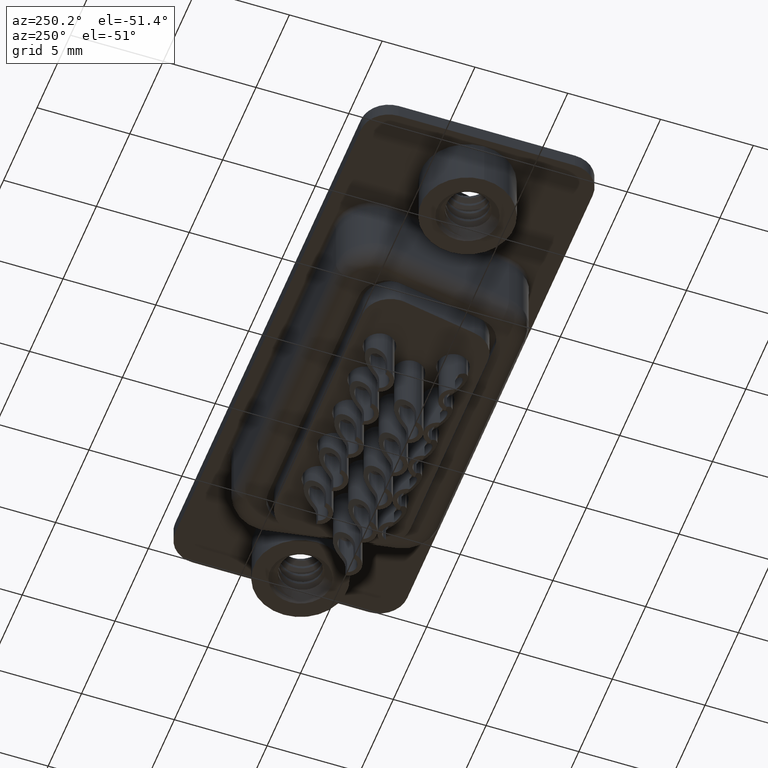
[diagram: clean part render]
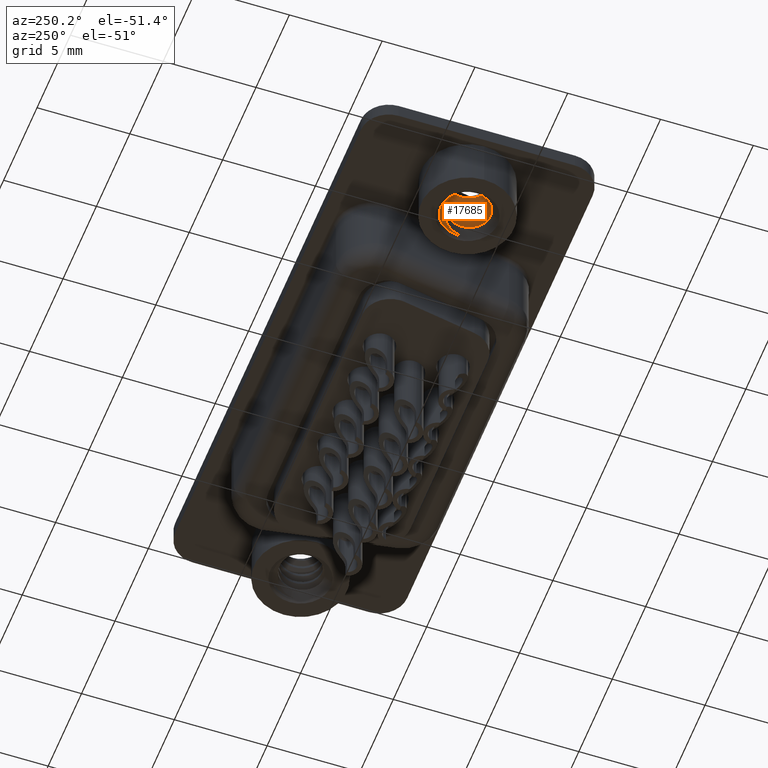
[diagram: same view with one face highlighted and labeled with its STEP entity id]
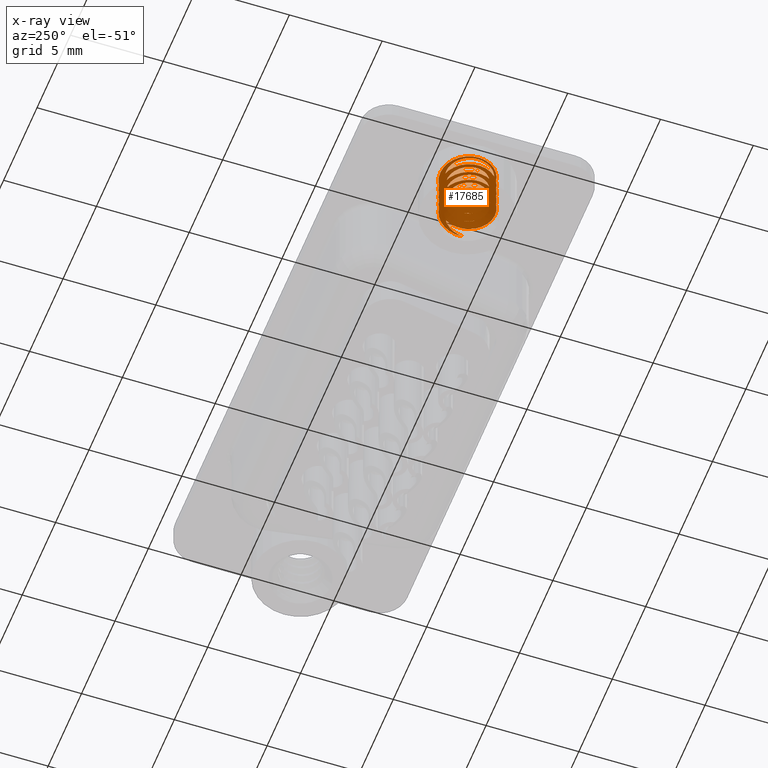
[diagram: x-ray of the same camera — body ghosted, the highlighted face saturated]
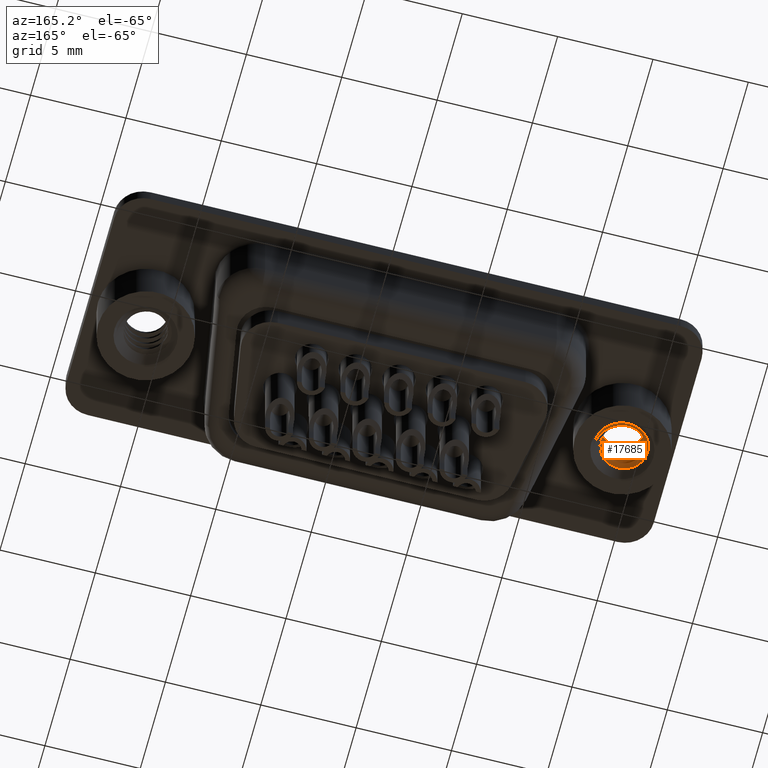
[diagram: same view with one face highlighted and labeled with its STEP entity id]
A machine part, auxiliary view. The second image highlights one B-rep face of the part: STEP entity #17685.
The next image is the same camera in x-ray: the body ghosted, the highlighted face saturated — about 0% of this face is hidden behind the body in this view.
A second angle (auxiliary view) of the same face is appended — the face is thin or edge-on in the first view.
In plain terms, the highlighted face is a freeform B-spline surface patch.
Its self-contained STEP definition (entity closure, byte-faithful):
#28 = CARTESIAN_POINT ( 'NONE',  ( 0.4729306445215732957, -1.320086702781952503, 0.1691428801154956363 ) ) ;
#32 = CARTESIAN_POINT ( 'NONE',  ( 1.474003830625000067, 1.805134073105843661E-16, 0.2490625008671517593 ) ) ;
#48 = CARTESIAN_POINT ( 'NONE',  ( 2.397536384661524008E-16, -1.305158018530067743, -0.3462500000000000022 ) ) ;
#96 = CARTESIAN_POINT ( 'NONE',  ( 1.130299999999999638, 0.6525790092650342045, -2.039583333333333304 ) ) ;
#120 = CARTESIAN_POINT ( 'NONE',  ( 0.7404568828280657655, 0.8539916244744696350, -0.1000000000000002137 ) ) ;
#124 = CARTESIAN_POINT ( 'NONE',  ( -0.1400784315917980305, -1.374124624453815446, 0.1396507463099389557 ) ) ;
#129 = CARTESIAN_POINT ( 'NONE',  ( -1.474003830624999623, -0.8510165083978838974, -0.6505208324661816421 ) ) ;
#150 = CARTESIAN_POINT ( 'NONE',  ( -0.5651500000000000412, 0.9788685138975506961, -2.515833333333333588 ) ) ;
#201 = CARTESIAN_POINT ( 'NONE',  ( 1.130299999999999860, 1.384218277076253112E-16, -0.1874999999999999445 ) ) ;
#214 = CARTESIAN_POINT ( 'NONE',  ( -0.09122550496209153037, 1.199405211386211922, -0.04950054990396737103 ) ) ;
#225 = CARTESIAN_POINT ( 'NONE',  ( -1.042194643031024339E-16, 1.702033016795766462, 0.4078125008671518170 ) ) ;
#244 = CARTESIAN_POINT ( 'NONE',  ( -0.5651499999999990420, -0.9788685138975513622, 0.2358333333333333393 ) ) ;
#246 = CARTESIAN_POINT ( 'NONE',  ( -1.042194643031024339E-16, 1.702033016795766462, -0.2271874991328483584 ) ) ;
#324 = CARTESIAN_POINT ( 'NONE',  ( -1.042194643031024339E-16, 1.702033016795766462, -2.132187499132848441 ) ) ;
#344 = CARTESIAN_POINT ( 'NONE',  ( 1.130299999999999638, 0.6525790092650342045, -1.404583333333333517 ) ) ;
#346 = CARTESIAN_POINT ( 'NONE',  ( 1.474003830625000067, 1.805134073105843661E-16, -0.3859374991328481386 ) ) ;
#366 = CARTESIAN_POINT ( 'NONE',  ( -0.1377566780636777233, 1.225624163367334818, -2.555851434638232167 ) ) ;
#418 = CARTESIAN_POINT ( 'NONE',  ( -1.474003830625000067, 0.0000000000000000000, -3.878437499132848743 ) ) ;
#438 = CARTESIAN_POINT ( 'NONE',  ( 1.130300000000000082, -0.6525790092650335383, -1.510416666666666519 ) ) ;
#439 = CARTESIAN_POINT ( 'NONE',  ( 3.126583929093072646E-16, -1.702033016795766462, -1.814687499132848769 ) ) ;
#494 = CARTESIAN_POINT ( 'NONE',  ( 1.130300000000000082, -0.6525790092650335383, -2.145416666666667194 ) ) ;
#519 = CARTESIAN_POINT ( 'NONE',  ( 1.474003830625000067, 1.805134073105843661E-16, -3.560937499132848405 ) ) ;
#534 = CARTESIAN_POINT ( 'NONE',  ( 2.397536384661524008E-16, -1.305158018530067743, -4.156250000000000000 ) ) ;
#618 = CARTESIAN_POINT ( 'NONE',  ( 1.474003830625000067, 1.805134073105843661E-16, -2.925937499132848174 ) ) ;
#639 = CARTESIAN_POINT ( 'NONE',  ( 0.5651499999999997081, 0.9788685138975509181, -2.621666666666666146 ) ) ;
#641 = CARTESIAN_POINT ( 'NONE',  ( 0.7370019153125005884, -1.276524762596824569, -2.396770832466181833 ) ) ;
#672 = CARTESIAN_POINT ( 'NONE',  ( 1.431968238982517017, 1.753655320350611533E-16, -2.901668238982515025 ) ) ;
#714 = CARTESIAN_POINT ( 'NONE',  ( -1.042194643031024339E-16, 1.702033016795766462, -5.942187499132847606 ) ) ;
#734 = CARTESIAN_POINT ( 'NONE',  ( 0.5651500000000004853, -0.9788685138975504740, -5.373333333333333073 ) ) ;
#736 = CARTESIAN_POINT ( 'NONE',  ( 0.7370019153125005884, -1.276524762596824569, -1.126770832466181593 ) ) ;
#760 = ORIENTED_EDGE ( 'NONE', *, *, #981, .T. ) ;
#809 = CARTESIAN_POINT ( 'NONE',  ( 1.474003830624999623, 0.8510165083978837863, -4.778020832466181922 ) ) ;
#828 = CARTESIAN_POINT ( 'NONE',  ( 0.5651500000000004853, -0.9788685138975504740, -2.833333333333333481 ) ) ;
#830 = CARTESIAN_POINT ( 'NONE',  ( -1.474003830625000067, 0.0000000000000000000, -2.608437499132848281 ) ) ;
#905 = CARTESIAN_POINT ( 'NONE',  ( 1.474003830625000067, 1.805134073105843661E-16, -6.735937499132848671 ) ) ;
#926 = CARTESIAN_POINT ( 'NONE',  ( 1.130299999999999860, 1.384218277076253112E-16, -5.267499999999999183 ) ) ;
#981 = EDGE_CURVE ( 'NONE', #6870, #3291, #17643, .T. ) ;
#998 = CARTESIAN_POINT ( 'NONE',  ( 0.7370019153125005884, -1.276524762596824569, -6.841770832466181673 ) ) ;
#1019 = CARTESIAN_POINT ( 'NONE',  ( -1.474003830625000067, 0.0000000000000000000, 1.201562500867151773 ) ) ;
#1063 = EDGE_CURVE ( 'NONE', #8595, #4048, #8579, .T. ) ;
#1094 = CARTESIAN_POINT ( 'NONE',  ( -1.474003830624999623, 0.8510165083978831202, -8.376354165799515528 ) ) ;
#1116 = CARTESIAN_POINT ( 'NONE',  ( -1.130299999999999860, 0.6525790092650337604, -8.177916666666666501 ) ) ;
#1189 = CARTESIAN_POINT ( 'NONE',  ( 1.474003830625000289, -0.8510165083978827871, -7.423854165799515847 ) ) ;
#1213 = CARTESIAN_POINT ( 'NONE',  ( -0.5651499999999990420, -0.9788685138975513622, -6.749166666666667425 ) ) ;
#1309 = CARTESIAN_POINT ( 'NONE',  ( 1.130300000000000082, -0.6525790092650335383, -8.495416666666667282 ) ) ;
#1334 = CARTESIAN_POINT ( 'NONE',  ( 0.3337500000000074296, 1.079902323129270147, -2.600000000000000533 ) ) ;
#1374 = CARTESIAN_POINT ( 'NONE',  ( -7.991787948871747926E-17, 1.305158018530067743, -1.933749999999999858 ) ) ;
#1395 = CARTESIAN_POINT ( 'NONE',  ( -0.7477698767931941770, 0.9866691060463462781, -0.01349072898881953191 ) ) ;
#1398 = CARTESIAN_POINT ( 'NONE',  ( 0.7216451507487464667, -1.225510819459564971, 0.1808133198571191536 ) ) ;
#1403 = CARTESIAN_POINT ( 'NONE',  ( 0.5651500000000004853, -0.9788685138975504740, -7.278333333333332433 ) ) ;
#1420 = CARTESIAN_POINT ( 'NONE',  ( -1.474003830624999623, -0.8510165083978838974, -0.6505208324661816421 ) ) ;
#1470 = CARTESIAN_POINT ( 'NONE',  ( 1.130299999999999638, 0.6525790092650342045, -1.404583333333333517 ) ) ;
#1488 = CARTESIAN_POINT ( 'NONE',  ( 1.474003830625000067, 1.805134073105843661E-16, -2.290937499132848387 ) ) ;
#1508 = CARTESIAN_POINT ( 'NONE',  ( 2.397536384661524008E-16, -1.305158018530067743, -2.251249999999999751 ) ) ;
#1588 = CARTESIAN_POINT ( 'NONE',  ( -1.474003830625000067, 0.0000000000000000000, -1.338437499132848485 ) ) ;
#1606 = CARTESIAN_POINT ( 'NONE',  ( -1.130299999999999860, 0.0000000000000000000, -2.409999999999999698 ) ) ;
#1608 = CARTESIAN_POINT ( 'NONE',  ( 1.474003830625000511, -0.8510165083978826761, -0.4388541657995149725 ) ) ;
#1625 = EDGE_CURVE ( 'NONE', #3291, #14192, #14827, .T. ) ;
#1696 = CARTESIAN_POINT ( 'NONE',  ( 0.7370019153125005884, -1.276524762596824569, -2.396770832466181833 ) ) ;
#1716 = CARTESIAN_POINT ( 'NONE',  ( 0.5651499999999997081, 0.9788685138975509181, 0.5533333333333333437 ) ) ;
#1731 = VERTEX_POINT ( 'NONE', #15924 ) ;
#1789 = CARTESIAN_POINT ( 'NONE',  ( 1.474003830624999623, 0.8510165083978837863, -0.3330208324661815267 ) ) ;
#1810 = CARTESIAN_POINT ( 'NONE',  ( -0.5651500000000000412, 0.9788685138975506961, -1.245833333333333348 ) ) ;
#1887 = CARTESIAN_POINT ( 'NONE',  ( 1.474003830625000289, -0.8510165083978827871, -2.343854165799514888 ) ) ;
#1904 = CARTESIAN_POINT ( 'NONE',  ( 0.5651499999999997081, 0.9788685138975509181, -0.7166666666666668961 ) ) ;
#1905 = CARTESIAN_POINT ( 'NONE',  ( -1.474003830624999623, 0.8510165083978830092, -2.026354165799514995 ) ) ;
#1971 = CARTESIAN_POINT ( 'NONE',  ( 1.451229865692487575, -0.1798818552870344034, -2.929251587763306741 ) ) ;
#1985 = CARTESIAN_POINT ( 'NONE',  ( -0.7370019153125002553, 1.276524762596824791, -4.619270832466180643 ) ) ;
#2007 = CARTESIAN_POINT ( 'NONE',  ( 1.130299999999999638, 0.6525790092650342045, -3.309583333333333766 ) ) ;
#2032 = CARTESIAN_POINT ( 'NONE',  ( -1.130299999999999860, 0.0000000000000000000, -2.409999999999999698 ) ) ;
#2083 = CARTESIAN_POINT ( 'NONE',  ( -1.042194643031024339E-16, 1.702033016795766462, -4.672187499132848920 ) ) ;
#2099 = CARTESIAN_POINT ( 'NONE',  ( -0.5651499999999990420, -0.9788685138975513622, -3.574166666666666270 ) ) ;
#2101 = CARTESIAN_POINT ( 'NONE',  ( -0.7370019153124989231, -1.276524762596825457, -1.232604165799514817 ) ) ;
#2175 = CARTESIAN_POINT ( 'NONE',  ( 0.7370019153124997002, 1.276524762596824791, -5.360104165799516096 ) ) ;
#2194 = CARTESIAN_POINT ( 'NONE',  ( 1.130300000000000082, -0.6525790092650335383, -3.415416666666665879 ) ) ;
#2274 = CARTESIAN_POINT ( 'NONE',  ( 0.7370019153125005884, -1.276524762596824569, -4.936770832466181425 ) ) ;
#2296 = CARTESIAN_POINT ( 'NONE',  ( 0.5651499999999997081, 0.9788685138975509181, -3.891666666666666607 ) ) ;
#2368 = CARTESIAN_POINT ( 'NONE',  ( 0.01822535111725764531, -1.473891152451165532, -8.798378920674748471 ) ) ;
#2386 = CARTESIAN_POINT ( 'NONE',  ( 0.5651500000000004853, -0.9788685138975504740, -3.468333333333332824 ) ) ;
#2392 = ORIENTED_EDGE ( 'NONE', *, *, #9526, .T. ) ;
#2461 = CARTESIAN_POINT ( 'NONE',  ( 0.7370019153125005884, -1.276524762596824569, -7.476770832466181460 ) ) ;
#2484 = CARTESIAN_POINT ( 'NONE',  ( -0.5651500000000000412, 0.9788685138975506961, -6.960833333333332540 ) ) ;
#2505 = CARTESIAN_POINT ( 'NONE',  ( 0.5651500000000004853, -0.9788685138975504740, 0.9766666666666666829 ) ) ;
#2555 = CARTESIAN_POINT ( 'NONE',  ( 0.7370019153125005884, -1.276524762596824569, -8.111770832466181247 ) ) ;
#2577 = CARTESIAN_POINT ( 'NONE',  ( -0.5651499999999990420, -0.9788685138975513622, -7.384166666666667211 ) ) ;
#2659 = CARTESIAN_POINT ( 'NONE',  ( -1.474003830624999623, -0.8510165083978838974, -8.270520832466182526 ) ) ;
#2678 = CARTESIAN_POINT ( 'NONE',  ( 1.130299999999999860, 1.384218277076253112E-16, -7.172500000000000320 ) ) ;
#2753 = CARTESIAN_POINT ( 'NONE',  ( 0.7370019153125005884, -1.276524762596824569, -8.746770832466182810 ) ) ;
#2779 = CARTESIAN_POINT ( 'NONE',  ( -1.130299999999999416, -0.6525790092650345375, -8.072083333333333499 ) ) ;
#2869 = CARTESIAN_POINT ( 'NONE',  ( -1.130299999999999416, -0.6525790092650345375, -6.167083333333333250 ) ) ;
#2892 = CARTESIAN_POINT ( 'NONE',  ( 0.7370019153124997002, 1.276524762596824791, -0.9151041657995151457 ) ) ;
#2958 = CARTESIAN_POINT ( 'NONE',  ( -1.122847626352018624, -0.6828340380646393815, 0.08090871850088400541 ) ) ;
#2963 = CARTESIAN_POINT ( 'NONE',  ( -0.7370019153125002553, 1.276524762596824791, -2.079270832466181940 ) ) ;
#2976 = CARTESIAN_POINT ( 'NONE',  ( -0.5651499999999990420, -0.9788685138975513622, -1.669166666666666687 ) ) ;
#2978 = CARTESIAN_POINT ( 'NONE',  ( 1.471564208989352807, -0.08477069964742539598, 0.2437038306251317343 ) ) ;
#3040 = CARTESIAN_POINT ( 'NONE',  ( -0.9731424114381015400, -0.9029979797619555049, 0.09434066751844055743 ) ) ;
#3044 = CARTESIAN_POINT ( 'NONE',  ( -0.7370019153125002553, 1.276524762596824791, -0.8092708324661814778 ) ) ;
#3067 = CARTESIAN_POINT ( 'NONE',  ( 1.130299999999999638, 0.6525790092650342045, -0.7695833333333332860 ) ) ;
#3069 = CARTESIAN_POINT ( 'NONE',  ( 1.425821487224194994, -0.8788345973305248249, 0.1926863465763882788 ) ) ;
#3146 = CARTESIAN_POINT ( 'NONE',  ( 1.474003830624999623, 0.8510165083978837863, -2.238020832466181886 ) ) ;
#3164 = CARTESIAN_POINT ( 'NONE',  ( -0.5651500000000000412, 0.9788685138975506961, -1.880833333333333579 ) ) ;
#3227 = CARTESIAN_POINT ( 'NONE',  ( -1.130299999999999416, -0.6525790092650345375, -2.357083333333333641 ) ) ;
#3236 = CARTESIAN_POINT ( 'NONE',  ( 1.130299999999999860, 1.384218277076253112E-16, -0.1874999999999999445 ) ) ;
#3251 = CARTESIAN_POINT ( 'NONE',  ( 1.474003830624999623, 0.8510165083978837863, 0.3019791675338183157 ) ) ;
#3267 = CARTESIAN_POINT ( 'NONE',  ( -7.991787948871746694E-17, 1.305158018530067743, -0.02875000000000013309 ) ) ;
#3291 = VERTEX_POINT ( 'NONE', #12680 ) ;
#3318 = CARTESIAN_POINT ( 'NONE',  ( -0.5651499999999990420, -0.9788685138975513622, -2.304166666666667140 ) ) ;
#3339 = CARTESIAN_POINT ( 'NONE',  ( 3.126583929093072646E-16, -1.702033016795766462, -2.449687499132848778 ) ) ;
#3359 = CARTESIAN_POINT ( 'NONE',  ( 1.130299999999999638, 0.6525790092650342045, -0.1345833333333333603 ) ) ;
#3361 = CARTESIAN_POINT ( 'NONE',  ( -1.042194643031024339E-16, 1.702033016795766462, -2.767187499132848227 ) ) ;
#3425 = B_SPLINE_CURVE_WITH_KNOTS ( 'NONE', 3,
 ( #13442, #14811, #12049, #10299, #2958, #10490, #3040, #12148, #6157, #9006, #124, #14997, #12240, #4507, #28, #1398, #15102, #16462, #10680, #5873, #18039, #4695 ),
 .UNSPECIFIED., .F., .F.,
 ( 4, 2, 2, 2, 2, 2, 2, 2, 2, 2, 4 ),
 ( 0.002746478274254675941, 0.003275979489858020077, 0.003540730097659692578, 0.003805480705461364646, 0.004334981921064708782, 0.004864483136668052918, 0.005129233744469724118, 0.005393984352271396186, 0.005923485567874740322, 0.006452986783478085325, 0.006982487999081429461 ),
 .UNSPECIFIED. ) ;
#3438 = CARTESIAN_POINT ( 'NONE',  ( -1.474003830624999623, 0.8510165083978831202, -3.931354165799514799 ) ) ;
#3457 = CARTESIAN_POINT ( 'NONE',  ( 1.130299999999999860, 1.384218277076253112E-16, -5.902499999999999858 ) ) ;
#3458 = CARTESIAN_POINT ( 'NONE',  ( -0.7370019153124989231, -1.276524762596825457, -1.867604165799514826 ) ) ;
#3538 = CARTESIAN_POINT ( 'NONE',  ( -1.474003830624999623, -0.8510165083978838974, -5.730520832466181602 ) ) ;
#3561 = CARTESIAN_POINT ( 'NONE',  ( 1.130300000000000082, -0.6525790092650335383, -4.685416666666666785 ) ) ;
#3563 = CARTESIAN_POINT ( 'NONE',  ( -1.042194643031024339E-16, 1.702033016795766462, -2.132187499132847996 ) ) ;
#3629 = CARTESIAN_POINT ( 'NONE',  ( -1.474003830624999623, 0.8510165083978831202, -5.836354165799515492 ) ) ;
#3645 = CARTESIAN_POINT ( 'NONE',  ( -1.130299999999999860, 0.0000000000000000000, -4.315000000000000391 ) ) ;
#3730 = CARTESIAN_POINT ( 'NONE',  ( -0.7370019153124989231, -1.276524762596825457, -5.042604165799515314 ) ) ;
#3748 = CARTESIAN_POINT ( 'NONE',  ( 1.130299999999999638, 0.6525790092650342045, -4.579583333333332895 ) ) ;
#3801 = CARTESIAN_POINT ( 'NONE',  ( -0.5651499999999990420, -0.9788685138975513622, -1.669166666666666687 ) ) ;
#3805 = EDGE_LOOP ( 'NONE', ( #6015, #2392, #8538, #760, #7228, #8628, #4396, #8730, #16816, #15829, #11211, #9871, #3877, #5230 ) ) ;
#3823 = CARTESIAN_POINT ( 'NONE',  ( 3.126583929093072646E-16, -1.702033016795766462, -3.719687499132848352 ) ) ;
#3843 = CARTESIAN_POINT ( 'NONE',  ( 1.130299999999999638, 0.6525790092650342045, -5.214583333333333570 ) ) ;
#3875 = CARTESIAN_POINT ( 'NONE',  ( 0.4721929733669943952, 1.067246456356879536, -2.628787262171559558 ) ) ;
#3877 = ORIENTED_EDGE ( 'NONE', *, *, #6567, .F. ) ;
#3911 = CARTESIAN_POINT ( 'NONE',  ( 1.474003830624999623, 0.8510165083978837863, -7.318020832466181957 ) ) ;
#3929 = CARTESIAN_POINT ( 'NONE',  ( 2.397536384661524008E-16, -1.305158018530067743, -6.696250000000000924 ) ) ;
#4004 = CARTESIAN_POINT ( 'NONE',  ( 3.126583929093072646E-16, -1.702033016795766462, -8.164687499132847748 ) ) ;
#4026 = CARTESIAN_POINT ( 'NONE',  ( -1.474003830625000067, 0.0000000000000000000, 0.5665625008671517637 ) ) ;
#4047 = CARTESIAN_POINT ( 'NONE',  ( 2.397536384661524008E-16, -1.305158018530067743, 0.9237500000000000711 ) ) ;
#4048 = VERTEX_POINT ( 'NONE', #201 ) ;
#4060 = EDGE_CURVE ( 'NONE', #14843, #14000, #4231, .T. ) ;
#4097 = CARTESIAN_POINT ( 'NONE',  ( -0.7370019153125002553, 1.276524762596824791, -6.524270832466181780 ) ) ;
#4121 = CARTESIAN_POINT ( 'NONE',  ( 0.5651499999999997081, 0.9788685138975509181, -7.066666666666667318 ) ) ;
#4198 = CARTESIAN_POINT ( 'NONE',  ( 3.126583929093072646E-16, -1.702033016795766462, -6.259687499132847499 ) ) ;
#4220 = CARTESIAN_POINT ( 'NONE',  ( 1.130299999999999638, 0.6525790092650342045, -8.389583333333334281 ) ) ;
#4231 =( BOUNDED_CURVE ( )  B_SPLINE_CURVE ( 2, ( #4580, #13237, #6041, #8897, #13423, #1470, #16157 ),
 .UNSPECIFIED., .F., .T. ) 
 B_SPLINE_CURVE_WITH_KNOTS ( ( 3, 2, 2, 3 ),
 ( 0.2500000000000000000, 0.2604166666666666852, 0.2708333333333333148, 0.2812500000000000000 ),
 .UNSPECIFIED. ) 
 CURVE ( )  GEOMETRIC_REPRESENTATION_ITEM ( )  RATIONAL_B_SPLINE_CURVE ( ( 1.000000000000000000, 0.8660254037844387076, 1.000000000000000000, 0.8660254037844387076, 1.000000000000000000, 0.8660254037844387076, 1.000000000000000000 ) ) 
 REPRESENTATION_ITEM ( '' )  );
#4242 = CARTESIAN_POINT ( 'NONE',  ( 1.130299999999999860, 1.384218277076253112E-16, 1.082500000000000018 ) ) ;
#4262 = EDGE_CURVE ( 'NONE', #8952, #10328, #17762, .T. ) ;
#4326 = CARTESIAN_POINT ( 'NONE',  ( 1.130299999999999860, 1.384218277076253112E-16, -7.807500000000000107 ) ) ;
#4396 = ORIENTED_EDGE ( 'NONE', *, *, #4262, .F. ) ;
#4412 = CARTESIAN_POINT ( 'NONE',  ( -1.474003830624999623, -0.8510165083978838974, -1.285520832466181540 ) ) ;
#4431 = CARTESIAN_POINT ( 'NONE',  ( 0.5651499999999997081, 0.9788685138975509181, 1.188333333333333242 ) ) ;
#4433 = CARTESIAN_POINT ( 'NONE',  ( 1.474003830625000067, 1.805134073105843661E-16, -1.020937499132848369 ) ) ;
#4507 = CARTESIAN_POINT ( 'NONE',  ( 0.3880240875916967647, -1.343283009539638861, 0.1651271177968007542 ) ) ;
#4513 = CARTESIAN_POINT ( 'NONE',  ( 3.126583929093072646E-16, -1.702033016795766462, 0.09031250086715172931 ) ) ;
#4530 = CARTESIAN_POINT ( 'NONE',  ( -1.130299999999999860, 0.0000000000000000000, -1.774999999999999911 ) ) ;
#4537 = CARTESIAN_POINT ( 'NONE',  ( -0.5651499999999990420, -0.9788685138975513622, -0.3991666666666668362 ) ) ;
#4580 = CARTESIAN_POINT ( 'NONE',  ( -1.130299999999999860, 0.0000000000000000000, -1.140000000000000124 ) ) ;
#4602 = CARTESIAN_POINT ( 'NONE',  ( 3.126583929093072646E-16, -1.702033016795766462, -1.814687499132848325 ) ) ;
#4626 = CARTESIAN_POINT ( 'NONE',  ( 0.5651499999999997081, 0.9788685138975509181, -1.351666666666666572 ) ) ;
#4689 = CARTESIAN_POINT ( 'NONE',  ( 0.7404568828280657655, 0.8539916244744696350, -0.1000000000000002137 ) ) ;
#4695 = CARTESIAN_POINT ( 'NONE',  ( 1.471564208989352807, -0.08477069964742539598, 0.2437038306251317343 ) ) ;
#4699 = CARTESIAN_POINT ( 'NONE',  ( 0.7370019153125005884, -1.276524762596824569, -1.126770832466181593 ) ) ;
#4716 = CARTESIAN_POINT ( 'NONE',  ( -1.130299999999999860, 0.0000000000000000000, -1.140000000000000124 ) ) ;
#4803 = CARTESIAN_POINT ( 'NONE',  ( 3.126583929093072646E-16, -1.702033016795766462, -0.5446874991328481963 ) ) ;
#4821 = CARTESIAN_POINT ( 'NONE',  ( -0.5651500000000000412, 0.9788685138975506961, 0.6591666666666666785 ) ) ;
#4823 = CARTESIAN_POINT ( 'NONE',  ( 1.474003830625000511, -0.8510165083978826761, -1.708854165799514435 ) ) ;
#4899 = CARTESIAN_POINT ( 'NONE',  ( -1.042194643031024339E-16, 1.702033016795766462, -4.037187499132849133 ) ) ;
#4921 = CARTESIAN_POINT ( 'NONE',  ( 1.130299999999999860, 1.384218277076253112E-16, -2.727500000000000036 ) ) ;
#4922 = CARTESIAN_POINT ( 'NONE',  ( 1.474003830625000067, 1.805134073105843661E-16, -1.655937499132848378 ) ) ;
#5000 = CARTESIAN_POINT ( 'NONE',  ( 1.474003830624999623, 0.8510165083978837863, -5.413020832466181709 ) ) ;
#5016 = CARTESIAN_POINT ( 'NONE',  ( 1.130300000000000082, -0.6525790092650335383, -5.955416666666667247 ) ) ;
#5099 = CARTESIAN_POINT ( 'NONE',  ( -0.7370019153124989231, -1.276524762596825457, -4.407604165799515528 ) ) ;
#5122 = CARTESIAN_POINT ( 'NONE',  ( 0.5651500000000004853, -0.9788685138975504740, -4.103333333333332611 ) ) ;
#5134 = CARTESIAN_POINT ( 'NONE',  ( -7.991787948871747926E-17, 1.305158018530067743, -0.6637500000000000622 ) ) ;
#5192 = CARTESIAN_POINT ( 'NONE',  ( 1.474003830625000067, 1.805134073105843661E-16, -5.465937499132848210 ) ) ;
#5209 = CARTESIAN_POINT ( 'NONE',  ( 1.130299999999999860, 1.384218277076253112E-16, -3.997500000000000053 ) ) ;
#5211 = CARTESIAN_POINT ( 'NONE',  ( 0.7370019153124997002, 1.276524762596824791, -2.820104165799514728 ) ) ;
#5230 = ORIENTED_EDGE ( 'NONE', *, *, #1063, .F. ) ;
#5287 = CARTESIAN_POINT ( 'NONE',  ( -1.474003830625000067, 0.0000000000000000000, -5.148437499132848316 ) ) ;
#5305 = CARTESIAN_POINT ( 'NONE',  ( 1.130300000000000082, -0.6525790092650335383, -2.780416666666666536 ) ) ;
#5396 = CARTESIAN_POINT ( 'NONE',  ( -0.7370019153125002553, 1.276524762596824791, 1.095729167533818327 ) ) ;
#5427 = B_SPLINE_CURVE_WITH_KNOTS ( 'NONE', 3,
 ( #120, #13344, #9202, #214, #9003, #1395, #13253, #6060, #13438, #17754 ),
 .UNSPECIFIED., .F., .F.,
 ( 4, 2, 2, 2, 4 ),
 ( 0.0000000000000000000, 0.0006866195685636689852, 0.001373239137127337970, 0.002059858705691006847, 0.002746478274254675941 ),
 .UNSPECIFIED. ) ;
#5450 = CARTESIAN_POINT ( 'NONE',  ( -1.130299999999996086, -0.6525790092650364249, -1.722083333333333188 ) ) ;
#5469 = CARTESIAN_POINT ( 'NONE',  ( -1.474003830624999623, 0.8510165083978831202, -7.741354165799515741 ) ) ;
#5488 = CARTESIAN_POINT ( 'NONE',  ( -0.5651499999999990420, -0.9788685138975513622, -6.114166666666665861 ) ) ;
#5511 = CARTESIAN_POINT ( 'NONE',  ( -7.991787948871746694E-17, 1.305158018530067743, 1.241249999999999964 ) ) ;
#5567 = CARTESIAN_POINT ( 'NONE',  ( 0.7370019153124997002, 1.276524762596824791, -7.900104165799516132 ) ) ;
#5589 = CARTESIAN_POINT ( 'NONE',  ( 0.5651500000000004853, -0.9788685138975504740, -6.008333333333333748 ) ) ;
#5611 = CARTESIAN_POINT ( 'NONE',  ( -1.130299999999999860, 0.6525790092650337604, 1.347083333333333188 ) ) ;
#5662 = CARTESIAN_POINT ( 'NONE',  ( 1.474003830625000067, 1.805134073105843661E-16, -8.005937499132848245 ) ) ;
#5690 = CARTESIAN_POINT ( 'NONE',  ( -1.130299999999999860, 0.0000000000000000000, -7.490000000000000213 ) ) ;
#5790 = CARTESIAN_POINT ( 'NONE',  ( -1.474003830624999623, 0.8510165083978831202, 1.148645834200485272 ) ) ;
#5801 = EDGE_CURVE ( 'NONE', #14000, #1731, #16373, .T. ) ;
#5873 = CARTESIAN_POINT ( 'NONE',  ( 1.404341060763604432, -0.4332448096424771355, 0.2286359279269626621 ) ) ;
#5878 = CARTESIAN_POINT ( 'NONE',  ( -0.7370019153125002553, 1.276524762596824791, -2.714270832466181727 ) ) ;
#5896 = CARTESIAN_POINT ( 'NONE',  ( -1.474003830625000067, 0.0000000000000000000, -0.7034374991328482540 ) ) ;
#5965 = CARTESIAN_POINT ( 'NONE',  ( -0.7370019153124989231, -1.276524762596825457, 0.03739583420048513129 ) ) ;
#5988 = CARTESIAN_POINT ( 'NONE',  ( -0.5651499999999990420, -0.9788685138975513622, -0.3991666666666668362 ) ) ;
#6015 = ORIENTED_EDGE ( 'NONE', *, *, #8338, .T. ) ;
#6041 = CARTESIAN_POINT ( 'NONE',  ( -0.5651500000000000412, 0.9788685138975506961, -1.245833333333333348 ) ) ;
#6060 = CARTESIAN_POINT ( 'NONE',  ( -1.190279634282249477, 0.4545828525584750812, 0.02317172629134598219 ) ) ;
#6067 = CARTESIAN_POINT ( 'NONE',  ( -1.474003830625000067, 0.0000000000000000000, -0.7034374991328482540 ) ) ;
#6086 = CARTESIAN_POINT ( 'NONE',  ( -7.991787948871746694E-17, 1.305158018530067743, -2.568750000000000089 ) ) ;
#6129 = CARTESIAN_POINT ( 'NONE',  ( -0.5651500000000000412, 0.9788685138975506961, -1.880833333333333579 ) ) ;
#6157 = CARTESIAN_POINT ( 'NONE',  ( -0.6402516829081860150, -1.195714150941069143, 0.1145648920745624411 ) ) ;
#6162 = CARTESIAN_POINT ( 'NONE',  ( -1.042194643031024339E-16, 1.702033016795766462, -0.2271874991328483584 ) ) ;
#6181 = CARTESIAN_POINT ( 'NONE',  ( 0.5651500000000004853, -0.9788685138975504740, -1.563333333333333464 ) ) ;
#6183 = CARTESIAN_POINT ( 'NONE',  ( 0.7370019153124997002, 1.276524762596824791, -0.2801041657995149703 ) ) ;
#6253 = CARTESIAN_POINT ( 'NONE',  ( 0.7370019153125005884, -1.276524762596824569, 0.1432291675338183412 ) ) ;
#6275 = CARTESIAN_POINT ( 'NONE',  ( 1.130299999999999860, 1.384218277076253112E-16, -0.8225000000000001199 ) ) ;
#6363 = CARTESIAN_POINT ( 'NONE',  ( -0.7370019153125002553, 1.276524762596824791, -3.349270832466181957 ) ) ;
#6382 = CARTESIAN_POINT ( 'NONE',  ( -1.130299999999999860, 0.6525790092650337604, -1.192916666666666403 ) ) ;
#6383 = CARTESIAN_POINT ( 'NONE',  ( 0.7370019153124997002, 1.276524762596824791, -1.550104165799514710 ) ) ;
#6392 = CARTESIAN_POINT ( 'NONE',  ( 0.5651499999999997081, 0.9788685138975509181, -0.7166666666666668961 ) ) ;
#6453 = CARTESIAN_POINT ( 'NONE',  ( 1.474003830624999623, 0.8510165083978837863, -2.873020832466181673 ) ) ;
#6473 = CARTESIAN_POINT ( 'NONE',  ( -0.5651500000000000412, 0.9788685138975506961, -3.785833333333332718 ) ) ;
#6552 = CARTESIAN_POINT ( 'NONE',  ( 3.126583929093072646E-16, -1.702033016795766462, -3.084687499132848121 ) ) ;
#6567 = EDGE_CURVE ( 'NONE', #4048, #9191, #8353, .T. ) ;
#6573 = CARTESIAN_POINT ( 'NONE',  ( 2.397536384661524008E-16, -1.305158018530067743, -3.521250000000000657 ) ) ;
#6575 = CARTESIAN_POINT ( 'NONE',  ( -1.474003830624999623, 0.8510165083978830092, -1.391354165799514764 ) ) ;
#6655 = CARTESIAN_POINT ( 'NONE',  ( 1.474003830625000289, -0.8510165083978827871, -6.153854165799514497 ) ) ;
#6677 = CARTESIAN_POINT ( 'NONE',  ( -1.130299999999999416, -0.6525790092650345375, -5.532083333333334352 ) ) ;
#6748 = CARTESIAN_POINT ( 'NONE',  ( -0.7370019153124989231, -1.276524762596825457, -3.137604165799514622 ) ) ;
#6765 = CARTESIAN_POINT ( 'NONE',  ( -1.130299999999999416, -0.6525790092650345375, -3.627083333333332771 ) ) ;
#6767 = CARTESIAN_POINT ( 'NONE',  ( 1.474003830625000511, -0.8510165083978826761, -2.343854165799514888 ) ) ;
#6776 = CARTESIAN_POINT ( 'NONE',  ( -1.130299999999999860, 0.6525790092650337604, -0.5579166666666668384 ) ) ;
#6859 = CARTESIAN_POINT ( 'NONE',  ( -1.130299999999999860, 0.6525790092650337604, -5.637916666666667354 ) ) ;
#6870 = VERTEX_POINT ( 'NONE', #18925 ) ;
#6943 = CARTESIAN_POINT ( 'NONE',  ( -1.474003830625000067, 0.0000000000000000000, -7.053437499132848565 ) ) ;
#6965 = CARTESIAN_POINT ( 'NONE',  ( 3.126583929093072646E-16, -1.702033016795766462, 0.7253125008671518215 ) ) ;
#7036 = CARTESIAN_POINT ( 'NONE',  ( 1.474003830624999623, 0.8510165083978837863, -8.588020832466183307 ) ) ;
#7057 = CARTESIAN_POINT ( 'NONE',  ( -7.991787948871746694E-17, 1.305158018530067743, -8.283749999999999503 ) ) ;
#7131 = CARTESIAN_POINT ( 'NONE',  ( -1.474003830624999623, -0.8510165083978838974, -7.000520832466182064 ) ) ;
#7156 = CARTESIAN_POINT ( 'NONE',  ( 0.5651500000000004853, -0.9788685138975504740, -7.913333333333333108 ) ) ;
#7228 = ORIENTED_EDGE ( 'NONE', *, *, #1625, .T. ) ;
#7258 = CARTESIAN_POINT ( 'NONE',  ( 1.130299999999999638, 0.6525790092650342045, -6.484583333333333144 ) ) ;
#7321 = CARTESIAN_POINT ( 'NONE',  ( 0.5651499999999997081, 0.9788685138975509181, -1.986666666666667025 ) ) ;
#7348 = CARTESIAN_POINT ( 'NONE',  ( -0.7370019153124989231, -1.276524762596825457, 0.6723958342004850985 ) ) ;
#7445 = CARTESIAN_POINT ( 'NONE',  ( -1.474003830625000067, 0.0000000000000000000, -2.608437499132848281 ) ) ;
#7465 = CARTESIAN_POINT ( 'NONE',  ( 1.130299999999999638, 0.6525790092650342045, 0.5004166666666666208 ) ) ;
#7472 = CARTESIAN_POINT ( 'NONE',  ( 1.130299999999999860, 1.384218277076253112E-16, -0.1874999999999999445 ) ) ;
#7487 =( BOUNDED_CURVE ( )  B_SPLINE_CURVE ( 2, ( #2978, #3069, #15129, #7669, #12175, #14923, #15023, #17875, #13664, #246, #6183, #9234, #346, #1608, #7569, #10708, #16689, #1420, #5896, #18261, #10325, #16294, #2892, #14836, #4433, #7864, #736, #9521, #2101, #13854, #12778, #6575, #11193, #10903, #6383, #18354, #4922, #4823, #9331, #439, #3458, #16884, #15697, #1905, #17079, #3563, #15504, #8056, #14050, #6767, #641, #15413, #9422, #11106, #830, #11004, #12681, #3361, #5211, #9712, #8258, #10803, #12579 ),
 .UNSPECIFIED., .F., .T. ) 
 B_SPLINE_CURVE_WITH_KNOTS ( ( 3, 2, 2, 2, 2, 2, 2, 2, 2, 2, 2, 2, 2, 2, 2, 2, 2, 2, 2, 2, 2, 2, 2, 2, 2, 2, 2, 2, 2, 2, 2, 3 ),
 ( 0.09585421715968946155, 0.1058330260682070478, 0.1164163286750277415, 0.1269996312818484629, 0.1375829338886691566, 0.1481662364954898781, 0.1587495391023105717, 0.1693328417091312654, 0.1799161443159519869, 0.1904994469227726805, 0.2010827495295933742, 0.2116660521364140957, 0.2222493547432348171, 0.2328326573500554830, 0.2434159599568762045, 0.2539992625636969259, 0.2645825651705176473, 0.2751658677773383133, 0.2857491703841590347, 0.2963324729909797561, 0.3069157755978004221, 0.3174990782046211435, 0.3280823808114418649, 0.3386656834182625309, 0.3492489860250832523, 0.3598322886319039737, 0.3704155912387246397, 0.3809988938455453611, 0.3915821964523660825, 0.4021654990591867485, 0.4127488016660074699, 0.4146650884650178170 ),
 .UNSPECIFIED. ) 
 CURVE ( )  GEOMETRIC_REPRESENTATION_ITEM ( )  RATIONAL_B_SPLINE_CURVE ( ( 0.9855695289356993793, 0.8736777219835628605, 1.000000000000000000, 0.8660254037844387076, 1.000000000000000000, 0.8660254037844387076, 1.000000000000000000, 0.8660254037844387076, 1.000000000000000000, 0.8660254037844387076, 1.000000000000000000, 0.8660254037844387076, 1.000000000000000000, 0.8660254037844387076, 1.000000000000000000, 0.8660254037844387076, 1.000000000000000000, 0.8660254037844387076, 1.000000000000000000, 0.8660254037844387076, 1.000000000000000000, 0.8660254037844387076, 1.000000000000000000, 0.8660254037844387076, 1.000000000000000000, 0.8660254037844387076, 1.000000000000000000, 0.8660254037844387076, 1.000000000000000000, 0.8660254037844387076, 1.000000000000000000, 0.8660254037844387076, 1.000000000000000000, 0.8660254037844387076, 1.000000000000000000, 0.8660254037844387076, 1.000000000000000000, 0.8660254037844387076, 1.000000000000000000, 0.8660254037844387076, 1.000000000000000000, 0.8660254037844387076, 1.000000000000000000, 0.8660254037844387076, 1.000000000000000000, 0.8660254037844387076, 1.000000000000000000, 0.8660254037844387076, 1.000000000000000000, 0.8660254037844387076, 1.000000000000000000, 0.8660254037844387076, 1.000000000000000000, 0.8660254037844387076, 1.000000000000000000, 0.8660254037844387076, 1.000000000000000000, 0.8660254037844387076, 1.000000000000000000, 0.8660254037844387076, 1.000000000000000000, 0.9757416224718776787, 0.9602680279835202892 ) ) 
 REPRESENTATION_ITEM ( '' )  );
#7546 = CARTESIAN_POINT ( 'NONE',  ( 1.474003830624999623, 0.8510165083978837863, -1.603020832466181655 ) ) ;
#7567 = CARTESIAN_POINT ( 'NONE',  ( 0.5651499999999997081, 0.9788685138975509181, -0.08166666666666673458 ) ) ;
#7569 = CARTESIAN_POINT ( 'NONE',  ( 0.7370019153125005884, -1.276524762596824569, -0.4917708324661815844 ) ) ;
#7574 = CARTESIAN_POINT ( 'NONE',  ( -1.130299999999999860, 0.0000000000000000000, -0.5050000000000000044 ) ) ;
#7610 = EDGE_CURVE ( 'NONE', #9191, #7766, #8253, .T. ) ;
#7648 = CARTESIAN_POINT ( 'NONE',  ( 1.474003830625000289, -0.8510165083978827871, 0.1961458342004851751 ) ) ;
#7667 = CARTESIAN_POINT ( 'NONE',  ( 2.397536384661524008E-16, -1.305158018530067743, 0.2887499999999999512 ) ) ;
#7669 = CARTESIAN_POINT ( 'NONE',  ( 3.126583929093072646E-16, -1.702033016795766462, 0.09031250086715172931 ) ) ;
#7728 = CARTESIAN_POINT ( 'NONE',  ( 1.445521611358323799, -0.08949695228017538751, -2.915221611357830422 ) ) ;
#7738 = CARTESIAN_POINT ( 'NONE',  ( -1.130299999999999416, -0.6525790092650345375, -1.087083333333333401 ) ) ;
#7742 = CARTESIAN_POINT ( 'NONE',  ( 0.7370019153124997002, 1.276524762596824791, -0.9151041657995151457 ) ) ;
#7765 = CARTESIAN_POINT ( 'NONE',  ( -7.991787948871746694E-17, 1.305158018530067743, -1.298750000000000071 ) ) ;
#7766 = VERTEX_POINT ( 'NONE', #17383 ) ;
#7821 = CARTESIAN_POINT ( 'NONE',  ( 0.5651500000000004853, -0.9788685138975504740, -2.198333333333333250 ) ) ;
#7838 = CARTESIAN_POINT ( 'NONE',  ( 1.130300000000000082, -0.6525790092650335383, -0.8754166666666669538 ) ) ;
#7842 = CARTESIAN_POINT ( 'NONE',  ( 0.7370019153125005884, -1.276524762596824569, -3.031770832466182064 ) ) ;
#7863 = CARTESIAN_POINT ( 'NONE',  ( 0.5651500000000004853, -0.9788685138975504740, -0.9283333333333333437 ) ) ;
#7864 = CARTESIAN_POINT ( 'NONE',  ( 1.474003830625000511, -0.8510165083978826761, -1.073854165799515092 ) ) ;
#7941 = CARTESIAN_POINT ( 'NONE',  ( -0.7370019153125002553, 1.276524762596824791, -5.254270832466181318 ) ) ;
#7959 = CARTESIAN_POINT ( 'NONE',  ( -1.130299999999999860, 0.0000000000000000000, -3.680000000000000160 ) ) ;
#7981 = CARTESIAN_POINT ( 'NONE',  ( 0.3337500000000074296, 1.079902323129270147, -2.600000000000000533 ) ) ;
#8035 = CARTESIAN_POINT ( 'NONE',  ( -1.474003830624999623, 0.8510165083978831202, -3.296354165799514568 ) ) ;
#8054 = CARTESIAN_POINT ( 'NONE',  ( 1.130300000000000082, -0.6525790092650335383, -4.050416666666666998 ) ) ;
#8056 = CARTESIAN_POINT ( 'NONE',  ( 1.474003830624999623, 0.8510165083978836753, -2.238020832466181886 ) ) ;
#8124 = CARTESIAN_POINT ( 'NONE',  ( 0.7404568828280657655, 0.8539916244744696350, -0.1000000000000002137 ) ) ;
#8133 = CARTESIAN_POINT ( 'NONE',  ( 1.474003830624999623, 0.8510165083978837863, -6.048020832466183272 ) ) ;
#8153 = CARTESIAN_POINT ( 'NONE',  ( 1.130300000000000082, -0.6525790092650335383, -5.320416666666666572 ) ) ;
#8235 = CARTESIAN_POINT ( 'NONE',  ( -1.474003830624999623, 0.8510165083978831202, -4.566354165799515030 ) ) ;
#8253 =( BOUNDED_CURVE ( )  B_SPLINE_CURVE ( 2, ( #13871, #6776, #12592, #5134, #6392, #12792, #18752 ),
 .UNSPECIFIED., .F., .T. ) 
 B_SPLINE_CURVE_WITH_KNOTS ( ( 3, 2, 2, 3 ),
 ( 0.1875000000000000000, 0.1979166666666666574, 0.2083333333333333426, 0.2187500000000000000 ),
 .UNSPECIFIED. ) 
 CURVE ( )  GEOMETRIC_REPRESENTATION_ITEM ( )  RATIONAL_B_SPLINE_CURVE ( ( 1.000000000000000000, 0.8660254037844387076, 1.000000000000000000, 0.8660254037844387076, 1.000000000000000000, 0.8660254037844387076, 1.000000000000000000 ) ) 
 REPRESENTATION_ITEM ( '' )  );
#8256 = CARTESIAN_POINT ( 'NONE',  ( 0.5651500000000004853, -0.9788685138975504740, -4.738333333333333286 ) ) ;
#8258 = CARTESIAN_POINT ( 'NONE',  ( 1.474003830625000067, 1.805134073105843661E-16, -2.925937499132848174 ) ) ;
#8338 = EDGE_CURVE ( 'NONE', #8595, #14461, #5427, .T. ) ;
#8341 = CARTESIAN_POINT ( 'NONE',  ( -0.5651499999999990420, -0.9788685138975513622, -5.479166666666666963 ) ) ;
#8353 =( BOUNDED_CURVE ( )  B_SPLINE_CURVE ( 2, ( #7472, #13470, #16301, #11990, #4537, #15029, #7574 ),
 .UNSPECIFIED., .F., .F. ) 
 B_SPLINE_CURVE_WITH_KNOTS ( ( 3, 2, 2, 3 ),
 ( 0.1562499999999999722, 0.1666666666666666297, 0.1770833333333333426, 0.1875000000000000000 ),
 .UNSPECIFIED. ) 
 CURVE ( )  GEOMETRIC_REPRESENTATION_ITEM ( )  RATIONAL_B_SPLINE_CURVE ( ( 1.000000000000000444, 0.8660254037844383745, 1.000000000000000000, 0.8660254037844387076, 1.000000000000000000, 0.8660254037844387076, 1.000000000000000000 ) ) 
 REPRESENTATION_ITEM ( '' )  );
#8419 = CARTESIAN_POINT ( 'NONE',  ( -1.474003830625000067, 0.0000000000000000000, -7.688437499132849240 ) ) ;
#8438 = CARTESIAN_POINT ( 'NONE',  ( 0.5651499999999997081, 0.9788685138975509181, -7.701666666666667105 ) ) ;
#8509 = CARTESIAN_POINT ( 'NONE',  ( -1.474003830625000067, 0.0000000000000000000, -8.323437499132849027 ) ) ;
#8532 = CARTESIAN_POINT ( 'NONE',  ( 0.7370019153124997002, 1.276524762596824791, 0.9898958342004851030 ) ) ;
#8538 = ORIENTED_EDGE ( 'NONE', *, *, #13144, .T. ) ;
#8579 =( BOUNDED_CURVE ( )  B_SPLINE_CURVE ( 2, ( #4689, #10671, #3236 ),
 .UNSPECIFIED., .F., .F. ) 
 B_SPLINE_CURVE_WITH_KNOTS ( ( 3, 3 ),
 ( 0.1477761792141569497, 0.1562499999999999722 ),
 .UNSPECIFIED. ) 
 CURVE ( )  GEOMETRIC_REPRESENTATION_ITEM ( )  RATIONAL_B_SPLINE_CURVE ( ( 0.9593451330361144613, 0.8910134350541101256, 0.9999999999999996669 ) ) 
 REPRESENTATION_ITEM ( '' )  );
#8595 = VERTEX_POINT ( 'NONE', #8124 ) ;
#8606 = CARTESIAN_POINT ( 'NONE',  ( -0.7370019153125002553, 1.276524762596824791, -8.429270832466182028 ) ) ;
#8628 = ORIENTED_EDGE ( 'NONE', *, *, #10594, .F. ) ;
#8629 = CARTESIAN_POINT ( 'NONE',  ( 2.397536384661524008E-16, -1.305158018530067743, -7.331249999999998934 ) ) ;
#8707 = CARTESIAN_POINT ( 'NONE',  ( 0.4034028847260721640, -1.469128252707297300, -8.770723210791253166 ) ) ;
#8730 = ORIENTED_EDGE ( 'NONE', *, *, #8907, .F. ) ;
#8732 = CARTESIAN_POINT ( 'NONE',  ( 0.5651500000000004853, -0.9788685138975504740, -8.548333333333333783 ) ) ;
#8824 = CARTESIAN_POINT ( 'NONE',  ( 1.130300000000000082, -0.6525790092650335383, -7.860416666666666607 ) ) ;
#8897 = CARTESIAN_POINT ( 'NONE',  ( -7.991787948871747926E-17, 1.305158018530067743, -1.298750000000000293 ) ) ;
#8907 = EDGE_CURVE ( 'NONE', #1731, #8952, #10362, .T. ) ;
#8916 = CARTESIAN_POINT ( 'NONE',  ( 3.126583929093072646E-16, -1.702033016795766462, -1.179687499132848316 ) ) ;
#8936 = CARTESIAN_POINT ( 'NONE',  ( 1.130300000000000082, -0.6525790092650335383, -0.2404166666666667784 ) ) ;
#8952 = VERTEX_POINT ( 'NONE', #18106 ) ;
#9003 = CARTESIAN_POINT ( 'NONE',  ( -0.3294008652161501405, 1.170210061840581961, -0.03621222793663868983 ) ) ;
#9006 = CARTESIAN_POINT ( 'NONE',  ( -0.3166806562484131282, -1.335501154528246248, 0.1308969003400807518 ) ) ;
#9011 = CARTESIAN_POINT ( 'NONE',  ( -1.474003830624999623, 0.8510165083978831202, -0.1213541657995148987 ) ) ;
#9030 = CARTESIAN_POINT ( 'NONE',  ( -0.5651499999999990420, -0.9788685138975513622, -2.304166666666667140 ) ) ;
#9111 = CARTESIAN_POINT ( 'NONE',  ( -1.474003830624999623, -0.8510165083978838974, -1.920520832466181771 ) ) ;
#9131 = CARTESIAN_POINT ( 'NONE',  ( 0.5651499999999997081, 0.9788685138975509181, -1.986666666666667025 ) ) ;
#9191 = VERTEX_POINT ( 'NONE', #17702 ) ;
#9202 = CARTESIAN_POINT ( 'NONE',  ( 0.3613929852304790802, 1.120333066288621504, -0.07568168354881790738 ) ) ;
#9211 = CARTESIAN_POINT ( 'NONE',  ( -1.474003830625000067, 0.0000000000000000000, -0.06843749913284830066 ) ) ;
#9232 = CARTESIAN_POINT ( 'NONE',  ( 1.130299999999999860, 1.384218277076253112E-16, -2.092499999999999805 ) ) ;
#9234 = CARTESIAN_POINT ( 'NONE',  ( 1.474003830624999623, 0.8510165083978836753, -0.3330208324661815267 ) ) ;
#9307 = CARTESIAN_POINT ( 'NONE',  ( -0.7370019153124989231, -1.276524762596825457, -1.867604165799514826 ) ) ;
#9329 = CARTESIAN_POINT ( 'NONE',  ( -1.130299999999999860, 0.6525790092650337604, 0.07708333333333329540 ) ) ;
#9331 = CARTESIAN_POINT ( 'NONE',  ( 0.7370019153125005884, -1.276524762596824569, -1.761770832466181602 ) ) ;
#9388 = CARTESIAN_POINT ( 'NONE',  ( 1.448841275763246284, -0.2711941192981576210, -2.943703830625000961 ) ) ;
#9402 = CARTESIAN_POINT ( 'NONE',  ( -1.474003830624999623, -0.8510165083978838974, -4.460520832466182028 ) ) ;
#9421 = CARTESIAN_POINT ( 'NONE',  ( 1.130299999999999638, 0.6525790092650342045, -3.944583333333333108 ) ) ;
#9422 = CARTESIAN_POINT ( 'NONE',  ( -0.7370019153124989231, -1.276524762596825457, -2.502604165799514835 ) ) ;
#9467 = CARTESIAN_POINT ( 'NONE',  ( 1.130299999999999860, 1.384218277076253112E-16, -2.092499999999999805 ) ) ;
#9501 = CARTESIAN_POINT ( 'NONE',  ( -1.474003830625000067, 0.0000000000000000000, -5.783437499132848103 ) ) ;
#9519 = CARTESIAN_POINT ( 'NONE',  ( -1.130299999999999416, -0.6525790092650345375, -4.897083333333333677 ) ) ;
#9521 = CARTESIAN_POINT ( 'NONE',  ( 3.126583929093072646E-16, -1.702033016795766462, -1.179687499132848316 ) ) ;
#9526 = EDGE_CURVE ( 'NONE', #14461, #10346, #3425, .T. ) ;
#9596 = CARTESIAN_POINT ( 'NONE',  ( -0.7370019153125002553, 1.276524762596824791, -5.889270832466181105 ) ) ;
#9616 = CARTESIAN_POINT ( 'NONE',  ( -0.5651500000000000412, 0.9788685138975506961, -5.055833333333333179 ) ) ;
#9693 = CARTESIAN_POINT ( 'NONE',  ( -1.474003830624999623, -0.8510165083978838974, -5.095520832466181815 ) ) ;
#9710 = CARTESIAN_POINT ( 'NONE',  ( 2.397536384661524008E-16, -1.305158018530067743, -2.886249999999999982 ) ) ;
#9712 = CARTESIAN_POINT ( 'NONE',  ( 1.474003830624999623, 0.8510165083978836753, -2.873020832466182117 ) ) ;
#9792 = CARTESIAN_POINT ( 'NONE',  ( 1.474003830624999623, 0.8510165083978837863, -4.143020832466181247 ) ) ;
#9815 = CARTESIAN_POINT ( 'NONE',  ( 2.397536384661524008E-16, -1.305158018530067743, -5.426249999999999574 ) ) ;
#9867 = CARTESIAN_POINT ( 'NONE',  ( 1.130300000000000082, -0.6525790092650335383, -1.510416666666666741 ) ) ;
#9871 = ORIENTED_EDGE ( 'NONE', *, *, #7610, .F. ) ;
#9887 = CARTESIAN_POINT ( 'NONE',  ( 0.7370019153124997002, 1.276524762596824791, -8.535104165799515030 ) ) ;
#9904 = CARTESIAN_POINT ( 'NONE',  ( -1.130299999999999860, 0.6525790092650337604, -6.272916666666666252 ) ) ;
#9985 = CARTESIAN_POINT ( 'NONE',  ( -1.474003830624999623, 0.8510165083978831202, -7.106354165799515954 ) ) ;
#10007 = CARTESIAN_POINT ( 'NONE',  ( -1.130299999999999860, 0.0000000000000000000, -6.219999999999999751 ) ) ;
#10027 = CARTESIAN_POINT ( 'NONE',  ( -0.5651499999999990420, -0.9788685138975513622, 0.8708333333333332371 ) ) ;
#10086 = CARTESIAN_POINT ( 'NONE',  ( -0.7370019153124989231, -1.276524762596825457, -7.582604165799516238 ) ) ;
#10108 = CARTESIAN_POINT ( 'NONE',  ( 1.130299999999999638, 0.6525790092650342045, -7.119583333333334707 ) ) ;
#10164 = CARTESIAN_POINT ( 'NONE',  ( 1.130299999999999860, 1.384218277076253112E-16, -1.457500000000000240 ) ) ;
#10184 = CARTESIAN_POINT ( 'NONE',  ( 1.474003830625000289, -0.8510165083978827871, -8.693854165799514533 ) ) ;
#10207 = CARTESIAN_POINT ( 'NONE',  ( 1.130299999999999860, 1.384218277076253112E-16, -8.442500000000000782 ) ) ;
#10225 = CARTESIAN_POINT ( 'NONE',  ( 1.130300000000000082, -0.6525790092650335383, 1.029583333333333295 ) ) ;
#10299 = CARTESIAN_POINT ( 'NONE',  ( -1.162059969090055267, -0.6040807986024109288, 0.07640565596362154654 ) ) ;
#10304 = CARTESIAN_POINT ( 'NONE',  ( -1.130299999999999860, 0.6525790092650337604, -6.907916666666666927 ) ) ;
#10325 = CARTESIAN_POINT ( 'NONE',  ( -0.7370019153125002553, 1.276524762596824791, -0.8092708324661814778 ) ) ;
#10328 = VERTEX_POINT ( 'NONE', #11523 ) ;
#10346 = VERTEX_POINT ( 'NONE', #13110 ) ;
#10362 =( BOUNDED_CURVE ( )  B_SPLINE_CURVE ( 2, ( #14782, #14969, #6129, #1374, #7321, #96, #9467 ),
 .UNSPECIFIED., .F., .F. ) 
 B_SPLINE_CURVE_WITH_KNOTS ( ( 3, 2, 2, 3 ),
 ( 0.3124999999999999445, 0.3229166666666666297, 0.3333333333333333148, 0.3437500000000000000 ),
 .UNSPECIFIED. ) 
 CURVE ( )  GEOMETRIC_REPRESENTATION_ITEM ( )  RATIONAL_B_SPLINE_CURVE ( ( 1.000000000000000666, 0.8660254037844380415, 1.000000000000000000, 0.8660254037844387076, 1.000000000000000000, 0.8660254037844387076, 1.000000000000000000 ) ) 
 REPRESENTATION_ITEM ( '' )  );
#10396 = CARTESIAN_POINT ( 'NONE',  ( 1.474003830625000289, -0.8510165083978827871, -1.073854165799515092 ) ) ;
#10417 = CARTESIAN_POINT ( 'NONE',  ( -7.991787948871746694E-17, 1.305158018530067743, -1.933749999999999858 ) ) ;
#10490 = CARTESIAN_POINT ( 'NONE',  ( -1.028597609245897715, -0.8322344069324566496, 0.08986905650651488831 ) ) ;
#10494 = CARTESIAN_POINT ( 'NONE',  ( 0.7370019153124997002, 1.276524762596824791, -2.820104165799514728 ) ) ;
#10510 = CARTESIAN_POINT ( 'NONE',  ( -1.130299999999999860, 0.0000000000000000000, 0.7649999999999999023 ) ) ;
#10586 = CARTESIAN_POINT ( 'NONE',  ( -0.7370019153125002553, 1.276524762596824791, -0.1742708324661815245 ) ) ;
#10594 = EDGE_CURVE ( 'NONE', #10328, #14192, #11500, .T. ) ;
#10608 = CARTESIAN_POINT ( 'NONE',  ( -1.130299999999999860, 0.6525790092650337604, -1.827916666666666634 ) ) ;
#10659 = CARTESIAN_POINT ( 'NONE',  ( 1.130299999999999860, 1.384218277076253112E-16, -2.092499999999999805 ) ) ;
#10671 = CARTESIAN_POINT ( 'NONE',  ( 1.130299999999998306, 0.5159765771831772430, -0.1456602225095154912 ) ) ;
#10680 = CARTESIAN_POINT ( 'NONE',  ( 1.244971112383588263, -0.7500889059726840724, 0.2123384159935031157 ) ) ;
#10686 = CARTESIAN_POINT ( 'NONE',  ( -0.7370019153124989231, -1.276524762596825457, -1.232604165799514817 ) ) ;
#10706 = CARTESIAN_POINT ( 'NONE',  ( 1.130299999999999860, 1.384218277076253112E-16, -0.1874999999999999445 ) ) ;
#10708 = CARTESIAN_POINT ( 'NONE',  ( 3.126583929093072646E-16, -1.702033016795766462, -0.5446874991328481963 ) ) ;
#10784 = CARTESIAN_POINT ( 'NONE',  ( 0.7370019153124997002, 1.276524762596824791, -0.2801041657995149703 ) ) ;
#10801 = CARTESIAN_POINT ( 'NONE',  ( 1.130299999999999860, 1.384218277076253112E-16, 0.4475000000000000089 ) ) ;
#10803 = CARTESIAN_POINT ( 'NONE',  ( 1.474003830625000289, -0.1367644045915305528, -2.934441583763662376 ) ) ;
#10877 = CARTESIAN_POINT ( 'NONE',  ( 1.474003830625000067, 1.805134073105843661E-16, -4.195937499132847748 ) ) ;
#10902 = CARTESIAN_POINT ( 'NONE',  ( 0.5651499999999997081, 0.9788685138975509181, -5.796666666666666856 ) ) ;
#10903 = CARTESIAN_POINT ( 'NONE',  ( -1.042194643031024339E-16, 1.702033016795766462, -1.497187499132848210 ) ) ;
#10980 = CARTESIAN_POINT ( 'NONE',  ( 1.474003830625000289, -0.8510165083978827871, -5.518854165799515599 ) ) ;
#11003 = CARTESIAN_POINT ( 'NONE',  ( -1.130299999999999860, 0.0000000000000000000, -3.044999999999999929 ) ) ;
#11004 = CARTESIAN_POINT ( 'NONE',  ( -1.474003830624999623, 0.8510165083978830092, -2.661354165799515670 ) ) ;
#11082 = CARTESIAN_POINT ( 'NONE',  ( 0.7370019153124997002, 1.276524762596824791, -4.725104165799515421 ) ) ;
#11104 = CARTESIAN_POINT ( 'NONE',  ( -1.130299999999999860, 0.6525790092650337604, -5.002916666666665790 ) ) ;
#11106 = CARTESIAN_POINT ( 'NONE',  ( -1.474003830624999623, -0.8510165083978838974, -2.555520832466181336 ) ) ;
#11172 = CARTESIAN_POINT ( 'NONE',  ( -0.7370019153124989231, -1.276524762596825457, -5.677604165799515989 ) ) ;
#11191 = CARTESIAN_POINT ( 'NONE',  ( -7.991787948871746694E-17, 1.305158018530067743, -5.108749999999999680 ) ) ;
#11193 = CARTESIAN_POINT ( 'NONE',  ( -0.7370019153125002553, 1.276524762596824791, -1.444270832466181487 ) ) ;
#11211 = ORIENTED_EDGE ( 'NONE', *, *, #11823, .F. ) ;
#11234 = CARTESIAN_POINT ( 'NONE',  ( 0.8520898994240314606, 0.9040119861910116406, -2.704644901623985298 ) ) ;
#11270 = CARTESIAN_POINT ( 'NONE',  ( 0.7370019153125005884, -1.276524762596824569, -5.571770832466181211 ) ) ;
#11288 = CARTESIAN_POINT ( 'NONE',  ( -1.130299999999999416, -0.6525790092650345375, -2.992083333333332984 ) ) ;
#11364 = CARTESIAN_POINT ( 'NONE',  ( -1.042194643031024339E-16, 1.702033016795766462, -6.577187499132847393 ) ) ;
#11384 = CARTESIAN_POINT ( 'NONE',  ( 1.474003830625000067, 1.805134073105843661E-16, 0.8840625008671516571 ) ) ;
#11453 = CARTESIAN_POINT ( 'NONE',  ( -0.7370019153125002553, 1.276524762596824791, -7.794270832466181353 ) ) ;
#11472 = CARTESIAN_POINT ( 'NONE',  ( -1.130299999999999860, 0.0000000000000000000, -6.855000000000000426 ) ) ;
#11500 =( BOUNDED_CURVE ( )  B_SPLINE_CURVE ( 2, ( #2032, #12502, #15235, #366, #7981 ),
 .UNSPECIFIED., .F., .F. ) 
 B_SPLINE_CURVE_WITH_KNOTS ( ( 3, 2, 3 ),
 ( 0.3750000000000000000, 0.3854166666666666852, 0.3935601855596909671 ),
 .UNSPECIFIED. ) 
 CURVE ( )  GEOMETRIC_REPRESENTATION_ITEM ( )  RATIONAL_B_SPLINE_CURVE ( ( 1.000000000000000000, 0.8660254037844387076, 1.000000000000000000, 0.8952616330751942408, 0.9542875291667087811 ) ) 
 REPRESENTATION_ITEM ( '' )  );
#11523 = CARTESIAN_POINT ( 'NONE',  ( -1.130299999999999860, 0.0000000000000000000, -2.409999999999999698 ) ) ;
#11553 = CARTESIAN_POINT ( 'NONE',  ( 3.126583929093072646E-16, -1.702033016795766462, -7.529687499132848849 ) ) ;
#11579 = CARTESIAN_POINT ( 'NONE',  ( -0.5651499999999990420, -0.9788685138975513622, -8.019166666666666998 ) ) ;
#11659 = CARTESIAN_POINT ( 'NONE',  ( -1.042194643031024339E-16, 1.702033016795766462, -8.482187499132848529 ) ) ;
#11681 = CARTESIAN_POINT ( 'NONE',  ( -7.991787948871746694E-17, 1.305158018530067743, -6.378750000000000142 ) ) ;
#11701 = CARTESIAN_POINT ( 'NONE',  ( 1.130299999999999638, 0.6525790092650342045, 1.135416666666666741 ) ) ;
#11775 = CARTESIAN_POINT ( 'NONE',  ( 1.474003830624999623, 0.8510165083978837863, 0.9369791675338184911 ) ) ;
#11823 = EDGE_CURVE ( 'NONE', #7766, #14843, #14376, .T. ) ;
#11870 = CARTESIAN_POINT ( 'NONE',  ( -0.7370019153124989231, -1.276524762596825457, -0.5976041657995150302 ) ) ;
#11961 = CARTESIAN_POINT ( 'NONE',  ( -1.474003830624999623, 0.8510165083978831202, -2.661354165799515226 ) ) ;
#11982 = CARTESIAN_POINT ( 'NONE',  ( -0.5651499999999990420, -0.9788685138975513622, -1.034166666666666456 ) ) ;
#11990 = CARTESIAN_POINT ( 'NONE',  ( 2.397536384661524008E-16, -1.305158018530067743, -0.3462500000000000022 ) ) ;
#12049 = CARTESIAN_POINT ( 'NONE',  ( -1.255788682202576556, -0.3555748688072631336, 0.06282391323408310913 ) ) ;
#12055 = CARTESIAN_POINT ( 'NONE',  ( 1.474003830625000067, 1.805134073105843661E-16, -1.655937499132848378 ) ) ;
#12073 = CARTESIAN_POINT ( 'NONE',  ( -0.5651500000000000412, 0.9788685138975506961, 0.02416666666666669391 ) ) ;
#12148 = CARTESIAN_POINT ( 'NONE',  ( -0.7899707139467528894, -1.093414740760912496, 0.1071061084078868825 ) ) ;
#12153 = CARTESIAN_POINT ( 'NONE',  ( 1.474003830624999623, 0.8510165083978837863, -0.9680208324661815356 ) ) ;
#12173 = CARTESIAN_POINT ( 'NONE',  ( 1.130300000000000082, -0.6525790092650335383, -2.145416666666667194 ) ) ;
#12175 = CARTESIAN_POINT ( 'NONE',  ( -0.7370019153124989231, -1.276524762596825457, 0.03739583420048513129 ) ) ;
#12240 = CARTESIAN_POINT ( 'NONE',  ( 0.2142786361460941036, -1.373310723460654970, 0.1568346660991883912 ) ) ;
#12241 = CARTESIAN_POINT ( 'NONE',  ( -1.130299999999999860, 0.0000000000000000000, -1.140000000000000124 ) ) ;
#12246 = CARTESIAN_POINT ( 'NONE',  ( 1.474003830625000067, 1.805134073105843661E-16, -0.3859374991328481386 ) ) ;
#12269 = CARTESIAN_POINT ( 'NONE',  ( 1.130300000000000082, -0.6525790092650335383, -0.8754166666666668428 ) ) ;
#12352 = CARTESIAN_POINT ( 'NONE',  ( 1.474003830624999623, 0.8510165083978837863, -3.508020832466182348 ) ) ;
#12371 = CARTESIAN_POINT ( 'NONE',  ( -1.130299999999999416, -0.6525790092650345375, -1.087083333333333401 ) ) ;
#12454 = CARTESIAN_POINT ( 'NONE',  ( 1.474003830625000289, -0.8510165083978827871, -4.883854165799514924 ) ) ;
#12481 = CARTESIAN_POINT ( 'NONE',  ( 0.5651499999999997081, 0.9788685138975509181, -4.526666666666666394 ) ) ;
#12502 = CARTESIAN_POINT ( 'NONE',  ( -1.130299999999999860, 0.6525790092650337604, -2.462916666666666643 ) ) ;
#12557 = CARTESIAN_POINT ( 'NONE',  ( -1.474003830624999623, -0.8510165083978838974, -3.190520832466182011 ) ) ;
#12577 = CARTESIAN_POINT ( 'NONE',  ( -1.130299999999999860, 0.6525790092650337604, -4.367916666666666892 ) ) ;
#12579 = CARTESIAN_POINT ( 'NONE',  ( 1.448841275763246284, -0.2711941192981576210, -2.943703830625000961 ) ) ;
#12592 = CARTESIAN_POINT ( 'NONE',  ( -0.5651500000000000412, 0.9788685138975506961, -0.6108333333333332282 ) ) ;
#12660 = CARTESIAN_POINT ( 'NONE',  ( 0.7370019153125005884, -1.276524762596824569, -3.666770832466181407 ) ) ;
#12679 = CARTESIAN_POINT ( 'NONE',  ( 1.130299999999999860, 1.384218277076253112E-16, -3.362499999999999822 ) ) ;
#12680 = CARTESIAN_POINT ( 'NONE',  ( 1.431968238982517017, 1.753655320350611533E-16, -2.901668238982515025 ) ) ;
#12681 = CARTESIAN_POINT ( 'NONE',  ( -0.7370019153125002553, 1.276524762596824791, -2.714270832466181727 ) ) ;
#12736 = CARTESIAN_POINT ( 'NONE',  ( -1.130299999999999860, 0.0000000000000000000, -1.774999999999999911 ) ) ;
#12754 = CARTESIAN_POINT ( 'NONE',  ( -1.042194643031024339E-16, 1.702033016795766462, -3.402187499132848458 ) ) ;
#12776 = CARTESIAN_POINT ( 'NONE',  ( 1.130299999999999860, 1.384218277076253112E-16, -4.632500000000000284 ) ) ;
#12778 = CARTESIAN_POINT ( 'NONE',  ( -1.474003830625000067, 0.0000000000000000000, -1.338437499132848485 ) ) ;
#12792 = CARTESIAN_POINT ( 'NONE',  ( 1.130299999999999638, 0.6525790092650342045, -0.7695833333333332860 ) ) ;
#12851 = CARTESIAN_POINT ( 'NONE',  ( -1.474003830624999623, 0.8510165083978831202, -6.471354165799514391 ) ) ;
#12868 = CARTESIAN_POINT ( 'NONE',  ( -0.5651500000000000412, 0.9788685138975506961, -5.690833333333332966 ) ) ;
#12897 =( BOUNDED_SURFACE ( )  B_SPLINE_SURFACE ( 1, 2, ( 
 ( #15910, #5611, #17873, #5511, #4431, #11701, #4242, #10225, #2505, #4047, #10027, #16004, #10510, #16687, #4821, #16486, #1716, #7465, #10801, #15312, #13853, #7667, #244, #16582, #13760, #9329, #12073, #3267, #7567, #3359, #10706, #8936, #13463, #48, #5988, #13662, #15214, #16786, #18259, #15021, #1904, #3067, #6275, #12269, #7863, #18060, #11982, #12371, #4716, #6382, #1810, #7765, #4626, #344, #17972, #438, #6181, #14921, #2976, #18353, #4530, #10608, #3164, #10417, #9131, #15127, #9232, #12173, #16396, #1508, #9030, #18152, #1606, #13566, #150, #6086, #639, #14333, #4921, #5305, #828, #9710, #15412, #11288, #11003, #16980, #17177, #17077, #15502, #2007, #12679, #2194, #2386, #6573, #2099, #6765, #7959, #15695, #6473, #13954, #2296, #9421, #5209, #8054, #5122, #534, #18738, #14048, #3645, #12577, #15790, #14142, #12481, #3748, #12776, #3561, #8256, #14241, #17273, #9519, #18549, #11104, #9616, #11191, #15600, #3843, #926, #8153, #734, #9815, #8341, #6677, #18643, #6859, #12868, #18451, #10902, #16883, #3457, #5016, #5589, #19025, #5488, #2869, #10007, #9904, #16180, #11681, #17562, #7258, #15888, #17368, #15981, #3929, #1213, #18833, #11472, #10304, #2484, #17664, #4121, #10108, #2678, #16081, #1403, #8629, #2577, #18929, #5690, #13263, #17465, #14617, #8438, #19229, #4326, #8824, #7156, #13160, #11579, #2779, #17764, #1116, #16276, #7057, #19126, #4220, #10207, #1309, #8732, #14424, #13062 ),
 ( #1019, #5790, #5396, #14719, #8532, #11775, #11384, #14818, #14529, #6965, #7348, #12971, #4026, #16467, #13541, #225, #17858, #3251, #32, #7648, #6253, #4513, #5965, #13644, #9211, #9011, #10586, #6162, #10784, #1789, #12246, #15196, #13445, #4803, #11870, #129, #6067, #15108, #3044, #16764, #7742, #12153, #18135, #10396, #4699, #8916, #10686, #4412, #1588, #14903, #15003, #16668, #13742, #7546, #12055, #18044, #15292, #4602, #9307, #9111, #16375, #18236, #2963, #324, #16566, #3146, #1488, #1887, #1696, #3339, #13353, #19317, #7445, #11961, #5878, #17951, #10494, #6453, #618, #18624, #7842, #6552, #6748, #12557, #17250, #8035, #6363, #12754, #14223, #12352, #519, #18332, #12660, #3823, #18529, #13831, #418, #3438, #14027, #4899, #15486, #9792, #10877, #15773, #16862, #18716, #5099, #9402, #15388, #8235, #1985, #2083, #11082, #809, #15671, #12454, #2274, #18431, #3730, #9693, #5287, #17058, #7941, #13935, #2175, #5000, #5192, #10980, #11270, #16960, #11172, #3538, #9501, #3629, #9596, #714, #15577, #8133, #14120, #6655, #17155, #4198, #12950, #14406, #14598, #12851, #4097, #11364, #18814, #16062, #905, #18998, #998, #17443, #17348, #7131, #6943, #9985, #18913, #17640, #14511, #3911, #17537, #1189, #2461, #11553, #10086, #13142, #8419, #5469, #11453, #15962, #5567, #15863, #5662, #16156, #2555, #4004, #19102, #2659, #8509, #1094, #8606, #11659, #9887, #7036, #13042, #10184, #2753, #8707, #2368 ) ),
 .UNSPECIFIED., .F., .F., .F. ) 
 B_SPLINE_SURFACE_WITH_KNOTS ( ( 2, 2 ),
 ( 3, 2, 2, 2, 2, 2, 2, 2, 2, 2, 2, 2, 2, 2, 2, 2, 2, 2, 2, 2, 2, 2, 2, 2, 2, 2, 2, 2, 2, 2, 2, 2, 2, 2, 2, 2, 2, 2, 2, 2, 2, 2, 2, 2, 2, 2, 2, 2, 2, 2, 2, 2, 2, 2, 2, 2, 2, 2, 2, 2, 2, 2, 2, 2, 2, 2, 2, 2, 2, 2, 2, 2, 2, 2, 2, 2, 2, 2, 2, 2, 2, 2, 2, 2, 2, 2, 2, 2, 2, 2, 2, 2, 2, 2, 2, 3 ),
 ( 0.0000000000000000000, 1.000000000000000000 ),
 ( 0.0000000000000000000, 0.01041666666666666609, 0.02083333333333333218, 0.03125000000000000000, 0.04166666666666666435, 0.05208333333333333565, 0.06250000000000000000, 0.07291666666666667129, 0.08333333333333332871, 0.09375000000000000000, 0.1041666666666666713, 0.1145833333333333287, 0.1250000000000000000, 0.1354166666666666574, 0.1458333333333333426, 0.1562500000000000000, 0.1666666666666666574, 0.1770833333333333426, 0.1875000000000000000, 0.1979166666666666574, 0.2083333333333333426, 0.2187500000000000000, 0.2291666666666666574, 0.2395833333333333426, 0.2500000000000000000, 0.2604166666666666852, 0.2708333333333333148, 0.2812500000000000000, 0.2916666666666666852, 0.3020833333333333148, 0.3125000000000000000, 0.3229166666666666852, 0.3333333333333333148, 0.3437500000000000000, 0.3541666666666666852, 0.3645833333333333148, 0.3750000000000000000, 0.3854166666666666852, 0.3958333333333333148, 0.4062500000000000000, 0.4166666666666666852, 0.4270833333333333148, 0.4375000000000000000, 0.4479166666666666852, 0.4583333333333333148, 0.4687500000000000000, 0.4791666666666666852, 0.4895833333333333148, 0.5000000000000000000, 0.5104166666666666297, 0.5208333333333333703, 0.5312500000000000000, 0.5416666666666666297, 0.5520833333333333703, 0.5625000000000000000, 0.5729166666666666297, 0.5833333333333333703, 0.5937500000000000000, 0.6041666666666666297, 0.6145833333333333703, 0.6250000000000000000, 0.6354166666666666297, 0.6458333333333333703, 0.6562500000000000000, 0.6666666666666666297, 0.6770833333333333703, 0.6875000000000000000, 0.6979166666666666297, 0.7083333333333333703, 0.7187500000000000000, 0.7291666666666666297, 0.7395833333333333703, 0.7500000000000000000, 0.7604166666666666297, 0.7708333333333333703, 0.7812500000000000000, 0.7916666666666666297, 0.8020833333333333703, 0.8125000000000000000, 0.8229166666666666297, 0.8333333333333333703, 0.8437500000000000000, 0.8541666666666666297, 0.8645833333333333703, 0.8750000000000000000, 0.8854166666666666297, 0.8958333333333333703, 0.9062500000000000000, 0.9166666666666666297, 0.9270833333333333703, 0.9375000000000000000, 0.9479166666666666297, 0.9583333333333333703, 0.9687500000000000000, 0.9791666666666666297, 0.9842548260836230245 ),
 .UNSPECIFIED. ) 
 GEOMETRIC_REPRESENTATION_ITEM ( )  RATIONAL_B_SPLINE_SURFACE ( (
 ( 1.000000000000000000, 0.8660254037844387076, 1.000000000000000000, 0.8660254037844387076, 1.000000000000000000, 0.8660254037844387076, 1.000000000000000000, 0.8660254037844387076, 1.000000000000000000, 0.8660254037844387076, 1.000000000000000000, 0.8660254037844387076, 1.000000000000000000, 0.8660254037844387076, 1.000000000000000000, 0.8660254037844387076, 1.000000000000000000, 0.8660254037844387076, 1.000000000000000000, 0.8660254037844387076, 1.000000000000000000, 0.8660254037844387076, 1.000000000000000000, 0.8660254037844387076, 1.000000000000000000, 0.8660254037844387076, 1.000000000000000000, 0.8660254037844387076, 1.000000000000000000, 0.8660254037844387076, 1.000000000000000000, 0.8660254037844387076, 1.000000000000000000, 0.8660254037844387076, 1.000000000000000000, 0.8660254037844387076, 1.000000000000000000, 0.8660254037844387076, 1.000000000000000000, 0.8660254037844387076, 1.000000000000000000, 0.8660254037844387076, 1.000000000000000000, 0.8660254037844387076, 1.000000000000000000, 0.8660254037844387076, 1.000000000000000000, 0.8660254037844387076, 1.000000000000000000, 0.8660254037844387076, 1.000000000000000000, 0.8660254037844387076, 1.000000000000000000, 0.8660254037844387076, 1.000000000000000000, 0.8660254037844387076, 1.000000000000000000, 0.8660254037844387076, 1.000000000000000000, 0.8660254037844387076, 1.000000000000000000, 0.8660254037844387076, 1.000000000000000000, 0.8660254037844387076, 1.000000000000000000, 0.8660254037844387076, 1.000000000000000000, 0.8660254037844387076, 1.000000000000000000, 0.8660254037844387076, 1.000000000000000000, 0.8660254037844387076, 1.000000000000000000, 0.8660254037844387076, 1.000000000000000000, 0.8660254037844387076, 1.000000000000000000, 0.8660254037844387076, 1.000000000000000000, 0.8660254037844387076, 1.000000000000000000, 0.8660254037844387076, 1.000000000000000000, 0.8660254037844387076, 1.000000000000000000, 0.8660254037844387076, 1.000000000000000000, 0.8660254037844387076, 1.000000000000000000, 0.8660254037844387076, 1.000000000000000000, 0.8660254037844387076, 1.000000000000000000, 0.8660254037844387076, 1.000000000000000000, 0.8660254037844387076, 1.000000000000000000, 0.8660254037844387076, 1.000000000000000000, 0.8660254037844387076, 1.000000000000000000, 0.8660254037844387076, 1.000000000000000000, 0.8660254037844387076, 1.000000000000000000, 0.8660254037844387076, 1.000000000000000000, 0.8660254037844387076, 1.000000000000000000, 0.8660254037844387076, 1.000000000000000000, 0.8660254037844387076, 1.000000000000000000, 0.8660254037844387076, 1.000000000000000000, 0.8660254037844387076, 1.000000000000000000, 0.8660254037844387076, 1.000000000000000000, 0.8660254037844387076, 1.000000000000000000, 0.8660254037844387076, 1.000000000000000000, 0.8660254037844387076, 1.000000000000000000, 0.8660254037844387076, 1.000000000000000000, 0.8660254037844387076, 1.000000000000000000, 0.8660254037844387076, 1.000000000000000000, 0.8660254037844387076, 1.000000000000000000, 0.8660254037844387076, 1.000000000000000000, 0.8660254037844387076, 1.000000000000000000, 0.8660254037844387076, 1.000000000000000000, 0.8660254037844387076, 1.000000000000000000, 0.8660254037844387076, 1.000000000000000000, 0.8660254037844387076, 1.000000000000000000, 0.8660254037844387076, 1.000000000000000000, 0.8660254037844387076, 1.000000000000000000, 0.8660254037844387076, 1.000000000000000000, 0.8660254037844387076, 1.000000000000000000, 0.8660254037844387076, 1.000000000000000000, 0.8660254037844387076, 1.000000000000000000, 0.8660254037844387076, 1.000000000000000000, 0.8660254037844387076, 1.000000000000000000, 0.8660254037844387076, 1.000000000000000000, 0.8660254037844387076, 1.000000000000000000, 0.8660254037844387076, 1.000000000000000000, 0.8660254037844387076, 1.000000000000000000, 0.8660254037844387076, 1.000000000000000000, 0.8660254037844387076, 1.000000000000000000, 0.8660254037844387076, 1.000000000000000000, 0.8660254037844387076, 1.000000000000000000, 0.8660254037844387076, 1.000000000000000000, 0.8660254037844387076, 1.000000000000000000, 0.8660254037844387076, 1.000000000000000000, 0.8660254037844387076, 1.000000000000000000, 0.8660254037844387076, 1.000000000000000000, 0.8660254037844387076, 1.000000000000000000, 0.9345583260767551526, 0.9330483646848279911),
 ( 1.000000000000000000, 0.8660254037844387076, 1.000000000000000000, 0.8660254037844387076, 1.000000000000000000, 0.8660254037844387076, 1.000000000000000000, 0.8660254037844387076, 1.000000000000000000, 0.8660254037844387076, 1.000000000000000000, 0.8660254037844387076, 1.000000000000000000, 0.8660254037844387076, 1.000000000000000000, 0.8660254037844387076, 1.000000000000000000, 0.8660254037844387076, 1.000000000000000000, 0.8660254037844387076, 1.000000000000000000, 0.8660254037844387076, 1.000000000000000000, 0.8660254037844387076, 1.000000000000000000, 0.8660254037844387076, 1.000000000000000000, 0.8660254037844387076, 1.000000000000000000, 0.8660254037844387076, 1.000000000000000000, 0.8660254037844387076, 1.000000000000000000, 0.8660254037844387076, 1.000000000000000000, 0.8660254037844387076, 1.000000000000000000, 0.8660254037844387076, 1.000000000000000000, 0.8660254037844387076, 1.000000000000000000, 0.8660254037844387076, 1.000000000000000000, 0.8660254037844387076, 1.000000000000000000, 0.8660254037844387076, 1.000000000000000000, 0.8660254037844387076, 1.000000000000000000, 0.8660254037844387076, 1.000000000000000000, 0.8660254037844387076, 1.000000000000000000, 0.8660254037844387076, 1.000000000000000000, 0.8660254037844387076, 1.000000000000000000, 0.8660254037844387076, 1.000000000000000000, 0.8660254037844387076, 1.000000000000000000, 0.8660254037844387076, 1.000000000000000000, 0.8660254037844387076, 1.000000000000000000, 0.8660254037844387076, 1.000000000000000000, 0.8660254037844387076, 1.000000000000000000, 0.8660254037844387076, 1.000000000000000000, 0.8660254037844387076, 1.000000000000000000, 0.8660254037844387076, 1.000000000000000000, 0.8660254037844387076, 1.000000000000000000, 0.8660254037844387076, 1.000000000000000000, 0.8660254037844387076, 1.000000000000000000, 0.8660254037844387076, 1.000000000000000000, 0.8660254037844387076, 1.000000000000000000, 0.8660254037844387076, 1.000000000000000000, 0.8660254037844387076, 1.000000000000000000, 0.8660254037844387076, 1.000000000000000000, 0.8660254037844387076, 1.000000000000000000, 0.8660254037844387076, 1.000000000000000000, 0.8660254037844387076, 1.000000000000000000, 0.8660254037844387076, 1.000000000000000000, 0.8660254037844387076, 1.000000000000000000, 0.8660254037844387076, 1.000000000000000000, 0.8660254037844387076, 1.000000000000000000, 0.8660254037844387076, 1.000000000000000000, 0.8660254037844387076, 1.000000000000000000, 0.8660254037844387076, 1.000000000000000000, 0.8660254037844387076, 1.000000000000000000, 0.8660254037844387076, 1.000000000000000000, 0.8660254037844387076, 1.000000000000000000, 0.8660254037844387076, 1.000000000000000000, 0.8660254037844387076, 1.000000000000000000, 0.8660254037844387076, 1.000000000000000000, 0.8660254037844387076, 1.000000000000000000, 0.8660254037844387076, 1.000000000000000000, 0.8660254037844387076, 1.000000000000000000, 0.8660254037844387076, 1.000000000000000000, 0.8660254037844387076, 1.000000000000000000, 0.8660254037844387076, 1.000000000000000000, 0.8660254037844387076, 1.000000000000000000, 0.8660254037844387076, 1.000000000000000000, 0.8660254037844387076, 1.000000000000000000, 0.8660254037844387076, 1.000000000000000000, 0.8660254037844387076, 1.000000000000000000, 0.8660254037844387076, 1.000000000000000000, 0.8660254037844387076, 1.000000000000000000, 0.8660254037844387076, 1.000000000000000000, 0.8660254037844387076, 1.000000000000000000, 0.8660254037844387076, 1.000000000000000000, 0.8660254037844387076, 1.000000000000000000, 0.8660254037844387076, 1.000000000000000000, 0.8660254037844387076, 1.000000000000000000, 0.8660254037844387076, 1.000000000000000000, 0.8660254037844387076, 1.000000000000000000, 0.8660254037844387076, 1.000000000000000000, 0.8660254037844387076, 1.000000000000000000, 0.8660254037844387076, 1.000000000000000000, 0.8660254037844387076, 1.000000000000000000, 0.8660254037844387076, 1.000000000000000000, 0.8660254037844387076, 1.000000000000000000, 0.8660254037844387076, 1.000000000000000000, 0.8660254037844387076, 1.000000000000000000, 0.8660254037844387076, 1.000000000000000000, 0.8660254037844387076, 1.000000000000000000, 0.8660254037844387076, 1.000000000000000000, 0.8660254037844387076, 1.000000000000000000, 0.9345583260767551526, 0.9330483646848279911) ) ) 
 REPRESENTATION_ITEM ( '' )  SURFACE ( )  );
#12950 = CARTESIAN_POINT ( 'NONE',  ( -0.7370019153124989231, -1.276524762596825457, -6.312604165799514000 ) ) ;
#12971 = CARTESIAN_POINT ( 'NONE',  ( -1.474003830624999623, -0.8510165083978838974, 0.6194791675338184866 ) ) ;
#13019 = CARTESIAN_POINT ( 'NONE',  ( 2.397536384661524008E-16, -1.305158018530067743, -1.616250000000000187 ) ) ;
#13042 = CARTESIAN_POINT ( 'NONE',  ( 1.474003830625000067, 1.805134073105843661E-16, -8.640937499132849808 ) ) ;
#13062 = CARTESIAN_POINT ( 'NONE',  ( 0.01397561793248637205, -1.130213595787718406, -8.599941421541899444 ) ) ;
#13110 = CARTESIAN_POINT ( 'NONE',  ( 1.471564208989352807, -0.08477069964742539598, 0.2437038306251317343 ) ) ;
#13142 = CARTESIAN_POINT ( 'NONE',  ( -1.474003830624999623, -0.8510165083978838974, -7.635520832466182739 ) ) ;
#13144 = EDGE_CURVE ( 'NONE', #10346, #6870, #7487, .T. ) ;
#13160 = CARTESIAN_POINT ( 'NONE',  ( 2.397536384661524008E-16, -1.305158018530067743, -7.966249999999999609 ) ) ;
#13237 = CARTESIAN_POINT ( 'NONE',  ( -1.130299999999999860, 0.6525790092650337604, -1.192916666666666625 ) ) ;
#13253 = CARTESIAN_POINT ( 'NONE',  ( -0.9321679534181013249, 0.8325613849115388598, -0.001529987340986616561 ) ) ;
#13263 = CARTESIAN_POINT ( 'NONE',  ( -1.130299999999999860, 0.6525790092650337604, -7.542916666666665826 ) ) ;
#13344 = CARTESIAN_POINT ( 'NONE',  ( 0.5741425092508622985, 1.015376103521182571, -0.08701904733469827125 ) ) ;
#13353 = CARTESIAN_POINT ( 'NONE',  ( -0.7370019153124989231, -1.276524762596825457, -2.502604165799514835 ) ) ;
#13368 = FACE_OUTER_BOUND ( 'NONE', #3805, .T. ) ;
#13423 = CARTESIAN_POINT ( 'NONE',  ( 0.5651499999999997081, 0.9788685138975509181, -1.351666666666666572 ) ) ;
#13438 = CARTESIAN_POINT ( 'NONE',  ( -1.265630675482413148, 0.2302343417900770683, 0.03533067548344293041 ) ) ;
#13442 = CARTESIAN_POINT ( 'NONE',  ( -1.276114157129319526, 5.709021708234942077E-12, 0.04581415712931924400 ) ) ;
#13445 = CARTESIAN_POINT ( 'NONE',  ( 0.7370019153125005884, -1.276524762596824569, -0.4917708324661815844 ) ) ;
#13463 = CARTESIAN_POINT ( 'NONE',  ( 0.5651500000000004853, -0.9788685138975504740, -0.2933333333333333903 ) ) ;
#13470 = CARTESIAN_POINT ( 'NONE',  ( 1.130300000000001859, -0.6525790092650325391, -0.2404166666666665841 ) ) ;
#13541 = CARTESIAN_POINT ( 'NONE',  ( -0.7370019153125002553, 1.276524762596824791, 0.4607291675338184289 ) ) ;
#13566 = CARTESIAN_POINT ( 'NONE',  ( -1.130299999999999860, 0.6525790092650337604, -2.462916666666666643 ) ) ;
#13630 = CARTESIAN_POINT ( 'NONE',  ( 1.431968238982517017, 1.753655320350611533E-16, -2.901668238982515025 ) ) ;
#13644 = CARTESIAN_POINT ( 'NONE',  ( -1.474003830624999623, -0.8510165083978838974, -0.01552083246618147887 ) ) ;
#13662 = CARTESIAN_POINT ( 'NONE',  ( -1.130299999999999416, -0.6525790092650345375, -0.4520833333333333925 ) ) ;
#13664 = CARTESIAN_POINT ( 'NONE',  ( -0.7370019153125002553, 1.276524762596824791, -0.1742708324661815245 ) ) ;
#13742 = CARTESIAN_POINT ( 'NONE',  ( 0.7370019153124997002, 1.276524762596824791, -1.550104165799514710 ) ) ;
#13760 = CARTESIAN_POINT ( 'NONE',  ( -1.130299999999999860, 0.0000000000000000000, 0.1299999999999998934 ) ) ;
#13764 = CARTESIAN_POINT ( 'NONE',  ( -1.276114157129319526, 5.709021708234942077E-12, 0.04581415712931924400 ) ) ;
#13831 = CARTESIAN_POINT ( 'NONE',  ( -1.474003830624999623, -0.8510165083978838974, -3.825520832466181353 ) ) ;
#13853 = CARTESIAN_POINT ( 'NONE',  ( 0.5651500000000004853, -0.9788685138975504740, 0.3416666666666665630 ) ) ;
#13854 = CARTESIAN_POINT ( 'NONE',  ( -1.474003830624999623, -0.8510165083978838974, -1.285520832466181540 ) ) ;
#13871 = CARTESIAN_POINT ( 'NONE',  ( -1.130299999999999860, 0.0000000000000000000, -0.5050000000000000044 ) ) ;
#13930 = CARTESIAN_POINT ( 'NONE',  ( 2.397536384661524008E-16, -1.305158018530067743, -0.9812500000000001776 ) ) ;
#13935 = CARTESIAN_POINT ( 'NONE',  ( -1.042194643031024339E-16, 1.702033016795766462, -5.307187499132847819 ) ) ;
#13954 = CARTESIAN_POINT ( 'NONE',  ( -7.991787948871746694E-17, 1.305158018530067743, -3.838750000000000107 ) ) ;
#13989 = CARTESIAN_POINT ( 'NONE',  ( 1.244201107290237029, 0.5155404310487148312, -2.809718240816259094 ) ) ;
#14000 = VERTEX_POINT ( 'NONE', #18379 ) ;
#14027 = CARTESIAN_POINT ( 'NONE',  ( -0.7370019153125002553, 1.276524762596824791, -3.984270832466180856 ) ) ;
#14048 = CARTESIAN_POINT ( 'NONE',  ( -1.130299999999999416, -0.6525790092650345375, -4.262083333333333002 ) ) ;
#14050 = CARTESIAN_POINT ( 'NONE',  ( 1.474003830625000067, 1.805134073105843661E-16, -2.290937499132848387 ) ) ;
#14120 = CARTESIAN_POINT ( 'NONE',  ( 1.474003830625000067, 1.805134073105843661E-16, -6.100937499132848885 ) ) ;
#14142 = CARTESIAN_POINT ( 'NONE',  ( -7.991787948871746694E-17, 1.305158018530067743, -4.473749999999999893 ) ) ;
#14192 = VERTEX_POINT ( 'NONE', #1334 ) ;
#14223 = CARTESIAN_POINT ( 'NONE',  ( 0.7370019153124997002, 1.276524762596824791, -3.455104165799514959 ) ) ;
#14241 = CARTESIAN_POINT ( 'NONE',  ( 2.397536384661524008E-16, -1.305158018530067743, -4.791249999999998899 ) ) ;
#14333 = CARTESIAN_POINT ( 'NONE',  ( 1.130299999999999638, 0.6525790092650342045, -2.674583333333333535 ) ) ;
#14376 =( BOUNDED_CURVE ( )  B_SPLINE_CURVE ( 2, ( #18232, #7838, #15384, #13930, #18427, #7738, #12241 ),
 .UNSPECIFIED., .F., .F. ) 
 B_SPLINE_CURVE_WITH_KNOTS ( ( 3, 2, 2, 3 ),
 ( 0.2187500000000000000, 0.2291666666666666574, 0.2395833333333333426, 0.2500000000000000000 ),
 .UNSPECIFIED. ) 
 CURVE ( )  GEOMETRIC_REPRESENTATION_ITEM ( )  RATIONAL_B_SPLINE_CURVE ( ( 1.000000000000000000, 0.8660254037844387076, 1.000000000000000000, 0.8660254037844387076, 1.000000000000000000, 0.8660254037844387076, 1.000000000000000000 ) ) 
 REPRESENTATION_ITEM ( '' )  );
#14406 = CARTESIAN_POINT ( 'NONE',  ( -1.474003830624999623, -0.8510165083978838974, -6.365520832466183165 ) ) ;
#14424 = CARTESIAN_POINT ( 'NONE',  ( 0.3093385994882678069, -1.126561294844774741, -8.572285711658404139 ) ) ;
#14461 = VERTEX_POINT ( 'NONE', #13764 ) ;
#14511 = CARTESIAN_POINT ( 'NONE',  ( 0.7370019153124997002, 1.276524762596824791, -7.265104165799516345 ) ) ;
#14529 = CARTESIAN_POINT ( 'NONE',  ( 0.7370019153125005884, -1.276524762596824569, 0.7782291675338184334 ) ) ;
#14598 = CARTESIAN_POINT ( 'NONE',  ( -1.474003830625000067, 0.0000000000000000000, -6.418437499132848778 ) ) ;
#14617 = CARTESIAN_POINT ( 'NONE',  ( -7.991787948871746694E-17, 1.305158018530067743, -7.648749999999998828 ) ) ;
#14719 = CARTESIAN_POINT ( 'NONE',  ( -1.042194643031024339E-16, 1.702033016795766462, 1.042812500867151826 ) ) ;
#14782 = CARTESIAN_POINT ( 'NONE',  ( -1.130299999999999860, 0.0000000000000000000, -1.774999999999999911 ) ) ;
#14811 = CARTESIAN_POINT ( 'NONE',  ( -1.284198715930060297, -0.1775500865778694148, 0.05389871592926591404 ) ) ;
#14818 = CARTESIAN_POINT ( 'NONE',  ( 1.474003830625000289, -0.8510165083978827871, 0.8311458342004850453 ) ) ;
#14827 = B_SPLINE_CURVE_WITH_KNOTS ( 'NONE', 3,
 ( #672, #18487, #15452, #13989, #18392, #17116, #11234, #15634, #3875, #18776 ),
 .UNSPECIFIED., .F., .F.,
 ( 4, 2, 2, 2, 4 ),
 ( 0.0002744681373057149092, 0.0006936973323650996986, 0.001112926527424484488, 0.001532155722483868844, 0.001951384917543253199 ),
 .UNSPECIFIED. ) ;
#14836 = CARTESIAN_POINT ( 'NONE',  ( 1.474003830624999623, 0.8510165083978836753, -0.9680208324661815356 ) ) ;
#14843 = VERTEX_POINT ( 'NONE', #16470 ) ;
#14903 = CARTESIAN_POINT ( 'NONE',  ( -1.474003830624999623, 0.8510165083978831202, -1.391354165799514764 ) ) ;
#14921 = CARTESIAN_POINT ( 'NONE',  ( 2.397536384661524008E-16, -1.305158018530067743, -1.616250000000000409 ) ) ;
#14923 = CARTESIAN_POINT ( 'NONE',  ( -1.474003830624999623, -0.8510165083978838974, -0.01552083246618147887 ) ) ;
#14969 = CARTESIAN_POINT ( 'NONE',  ( -1.130300000000003413, 0.6525790092650317620, -1.827916666666666190 ) ) ;
#14997 = CARTESIAN_POINT ( 'NONE',  ( 0.1245922052760618237, -1.380009584509835685, 0.1525162640609425690 ) ) ;
#15003 = CARTESIAN_POINT ( 'NONE',  ( -0.7370019153125002553, 1.276524762596824791, -1.444270832466181487 ) ) ;
#15021 = CARTESIAN_POINT ( 'NONE',  ( -7.991787948871746694E-17, 1.305158018530067743, -0.6637500000000000622 ) ) ;
#15023 = CARTESIAN_POINT ( 'NONE',  ( -1.474003830625000067, 0.0000000000000000000, -0.06843749913284830066 ) ) ;
#15029 = CARTESIAN_POINT ( 'NONE',  ( -1.130299999999999416, -0.6525790092650345375, -0.4520833333333333925 ) ) ;
#15102 = CARTESIAN_POINT ( 'NONE',  ( 0.8734387641588209350, -1.131417880981315571, 0.1879043112344163935 ) ) ;
#15108 = CARTESIAN_POINT ( 'NONE',  ( -1.474003830624999623, 0.8510165083978831202, -0.7563541657995149770 ) ) ;
#15127 = CARTESIAN_POINT ( 'NONE',  ( 1.130299999999999638, 0.6525790092650342045, -2.039583333333333304 ) ) ;
#15129 = CARTESIAN_POINT ( 'NONE',  ( 0.7370019153125005884, -1.276524762596824569, 0.1432291675338183412 ) ) ;
#15196 = CARTESIAN_POINT ( 'NONE',  ( 1.474003830625000289, -0.8510165083978827871, -0.4388541657995149725 ) ) ;
#15214 = CARTESIAN_POINT ( 'NONE',  ( -1.130299999999999860, 0.0000000000000000000, -0.5050000000000000044 ) ) ;
#15235 = CARTESIAN_POINT ( 'NONE',  ( -0.5651500000000000412, 0.9788685138975506961, -2.515833333333333588 ) ) ;
#15292 = CARTESIAN_POINT ( 'NONE',  ( 0.7370019153125005884, -1.276524762596824569, -1.761770832466181602 ) ) ;
#15312 = CARTESIAN_POINT ( 'NONE',  ( 1.130300000000000082, -0.6525790092650335383, 0.3945833333333333970 ) ) ;
#15384 = CARTESIAN_POINT ( 'NONE',  ( 0.5651500000000004853, -0.9788685138975504740, -0.9283333333333333437 ) ) ;
#15388 = CARTESIAN_POINT ( 'NONE',  ( -1.474003830625000067, 0.0000000000000000000, -4.513437499132848529 ) ) ;
#15412 = CARTESIAN_POINT ( 'NONE',  ( -0.5651499999999990420, -0.9788685138975513622, -2.939166666666666483 ) ) ;
#15413 = CARTESIAN_POINT ( 'NONE',  ( 3.126583929093072646E-16, -1.702033016795766462, -2.449687499132847890 ) ) ;
#15452 = CARTESIAN_POINT ( 'NONE',  ( 1.368078516205455175, 0.2713012695348686054, -2.857890822490302352 ) ) ;
#15486 = CARTESIAN_POINT ( 'NONE',  ( 0.7370019153124997002, 1.276524762596824791, -4.090104165799515634 ) ) ;
#15502 = CARTESIAN_POINT ( 'NONE',  ( 0.5651499999999997081, 0.9788685138975509181, -3.256666666666666377 ) ) ;
#15504 = CARTESIAN_POINT ( 'NONE',  ( 0.7370019153124997002, 1.276524762596824791, -2.185104165799514941 ) ) ;
#15577 = CARTESIAN_POINT ( 'NONE',  ( 0.7370019153124997002, 1.276524762596824791, -5.995104165799515883 ) ) ;
#15600 = CARTESIAN_POINT ( 'NONE',  ( 0.5651499999999997081, 0.9788685138975509181, -5.161666666666667069 ) ) ;
#15634 = CARTESIAN_POINT ( 'NONE',  ( 0.6057478976776420332, 1.025619245358757814, -2.653177669481239231 ) ) ;
#15671 = CARTESIAN_POINT ( 'NONE',  ( 1.474003830625000067, 1.805134073105843661E-16, -4.830937499132848423 ) ) ;
#15695 = CARTESIAN_POINT ( 'NONE',  ( -1.130299999999999860, 0.6525790092650337604, -3.732916666666666217 ) ) ;
#15697 = CARTESIAN_POINT ( 'NONE',  ( -1.474003830625000067, 0.0000000000000000000, -1.973437499132848050 ) ) ;
#15755 = CARTESIAN_POINT ( 'NONE',  ( 0.5651500000000004853, -0.9788685138975504740, -1.563333333333333464 ) ) ;
#15773 = CARTESIAN_POINT ( 'NONE',  ( 1.474003830625000289, -0.8510165083978827871, -4.248854165799515137 ) ) ;
#15790 = CARTESIAN_POINT ( 'NONE',  ( -0.5651500000000000412, 0.9788685138975506961, -4.420833333333333393 ) ) ;
#15829 = ORIENTED_EDGE ( 'NONE', *, *, #4060, .F. ) ;
#15863 = CARTESIAN_POINT ( 'NONE',  ( 1.474003830624999623, 0.8510165083978837863, -7.953020832466182632 ) ) ;
#15888 = CARTESIAN_POINT ( 'NONE',  ( 1.130299999999999860, 1.384218277076253112E-16, -6.537499999999999645 ) ) ;
#15910 = CARTESIAN_POINT ( 'NONE',  ( -1.130299999999999860, 0.0000000000000000000, 1.399999999999999911 ) ) ;
#15924 = CARTESIAN_POINT ( 'NONE',  ( -1.130299999999999860, 0.0000000000000000000, -1.774999999999999911 ) ) ;
#15962 = CARTESIAN_POINT ( 'NONE',  ( -1.042194643031024339E-16, 1.702033016795766462, -7.847187499132847854 ) ) ;
#15981 = CARTESIAN_POINT ( 'NONE',  ( 0.5651500000000004853, -0.9788685138975504740, -6.643333333333332646 ) ) ;
#16004 = CARTESIAN_POINT ( 'NONE',  ( -1.130299999999999416, -0.6525790092650345375, 0.8179166666666667362 ) ) ;
#16062 = CARTESIAN_POINT ( 'NONE',  ( 1.474003830624999623, 0.8510165083978837863, -6.683020832466182171 ) ) ;
#16081 = CARTESIAN_POINT ( 'NONE',  ( 1.130300000000000082, -0.6525790092650335383, -7.225416666666665932 ) ) ;
#16156 = CARTESIAN_POINT ( 'NONE',  ( 1.474003830625000289, -0.8510165083978827871, -8.058854165799514746 ) ) ;
#16157 = CARTESIAN_POINT ( 'NONE',  ( 1.130299999999999860, 1.384218277076253112E-16, -1.457500000000000240 ) ) ;
#16180 = CARTESIAN_POINT ( 'NONE',  ( -0.5651500000000000412, 0.9788685138975506961, -6.325833333333333641 ) ) ;
#16276 = CARTESIAN_POINT ( 'NONE',  ( -0.5651500000000000412, 0.9788685138975506961, -8.230833333333333002 ) ) ;
#16294 = CARTESIAN_POINT ( 'NONE',  ( -1.042194643031024339E-16, 1.702033016795766462, -0.8621874991328482007 ) ) ;
#16301 = CARTESIAN_POINT ( 'NONE',  ( 0.5651500000000004853, -0.9788685138975504740, -0.2933333333333333903 ) ) ;
#16373 =( BOUNDED_CURVE ( )  B_SPLINE_CURVE ( 2, ( #10164, #9867, #15755, #13019, #3801, #5450, #12736 ),
 .UNSPECIFIED., .F., .F. ) 
 B_SPLINE_CURVE_WITH_KNOTS ( ( 3, 2, 2, 3 ),
 ( 0.2812500000000000000, 0.2916666666666666852, 0.3020833333333332593, 0.3124999999999999445 ),
 .UNSPECIFIED. ) 
 CURVE ( )  GEOMETRIC_REPRESENTATION_ITEM ( )  RATIONAL_B_SPLINE_CURVE ( ( 1.000000000000000000, 0.8660254037844387076, 1.000000000000000000, 0.8660254037844387076, 1.000000000000000000, 0.8660254037844393737, 0.9999999999999993339 ) ) 
 REPRESENTATION_ITEM ( '' )  );
#16375 = CARTESIAN_POINT ( 'NONE',  ( -1.474003830625000067, 0.0000000000000000000, -1.973437499132848050 ) ) ;
#16396 = CARTESIAN_POINT ( 'NONE',  ( 0.5651500000000004853, -0.9788685138975504740, -2.198333333333333250 ) ) ;
#16462 = CARTESIAN_POINT ( 'NONE',  ( 1.137397761850878597, -0.8918768296256069927, 0.2040708447088424027 ) ) ;
#16467 = CARTESIAN_POINT ( 'NONE',  ( -1.474003830624999623, 0.8510165083978831202, 0.5136458342004851518 ) ) ;
#16470 = CARTESIAN_POINT ( 'NONE',  ( -1.130299999999999860, 0.0000000000000000000, -1.140000000000000124 ) ) ;
#16486 = CARTESIAN_POINT ( 'NONE',  ( -7.991787948871746694E-17, 1.305158018530067743, 0.6062499999999999556 ) ) ;
#16566 = CARTESIAN_POINT ( 'NONE',  ( 0.7370019153124997002, 1.276524762596824791, -2.185104165799514941 ) ) ;
#16582 = CARTESIAN_POINT ( 'NONE',  ( -1.130299999999999416, -0.6525790092650345375, 0.1829166666666667274 ) ) ;
#16644 = CARTESIAN_POINT ( 'NONE',  ( -1.130299999999999860, 0.0000000000000000000, -2.409999999999999698 ) ) ;
#16668 = CARTESIAN_POINT ( 'NONE',  ( -1.042194643031024339E-16, 1.702033016795766462, -1.497187499132848654 ) ) ;
#16687 = CARTESIAN_POINT ( 'NONE',  ( -1.130299999999999860, 0.6525790092650337604, 0.7120833333333334014 ) ) ;
#16689 = CARTESIAN_POINT ( 'NONE',  ( -0.7370019153124989231, -1.276524762596825457, -0.5976041657995150302 ) ) ;
#16764 = CARTESIAN_POINT ( 'NONE',  ( -1.042194643031024339E-16, 1.702033016795766462, -0.8621874991328482007 ) ) ;
#16786 = CARTESIAN_POINT ( 'NONE',  ( -1.130299999999999860, 0.6525790092650337604, -0.5579166666666668384 ) ) ;
#16816 = ORIENTED_EDGE ( 'NONE', *, *, #5801, .F. ) ;
#16839 = CARTESIAN_POINT ( 'NONE',  ( 2.397536384661524008E-16, -1.305158018530067743, -2.251249999999999751 ) ) ;
#16862 = CARTESIAN_POINT ( 'NONE',  ( 0.7370019153125005884, -1.276524762596824569, -4.301770832466180750 ) ) ;
#16883 = CARTESIAN_POINT ( 'NONE',  ( 1.130299999999999638, 0.6525790092650342045, -5.849583333333333357 ) ) ;
#16884 = CARTESIAN_POINT ( 'NONE',  ( -1.474003830624999623, -0.8510165083978838974, -1.920520832466181771 ) ) ;
#16960 = CARTESIAN_POINT ( 'NONE',  ( 3.126583929093072646E-16, -1.702033016795766462, -5.624687499132847712 ) ) ;
#16980 = CARTESIAN_POINT ( 'NONE',  ( -1.130299999999999860, 0.6525790092650337604, -3.097916666666666430 ) ) ;
#17058 = CARTESIAN_POINT ( 'NONE',  ( -1.474003830624999623, 0.8510165083978831202, -5.201354165799514817 ) ) ;
#17077 = CARTESIAN_POINT ( 'NONE',  ( -7.991787948871746694E-17, 1.305158018530067743, -3.203749999999999876 ) ) ;
#17079 = CARTESIAN_POINT ( 'NONE',  ( -0.7370019153125002553, 1.276524762596824791, -2.079270832466181940 ) ) ;
#17116 = CARTESIAN_POINT ( 'NONE',  ( 0.9663736172588905937, 0.8224967301602355008, -2.731539659260629804 ) ) ;
#17155 = CARTESIAN_POINT ( 'NONE',  ( 0.7370019153125005884, -1.276524762596824569, -6.206770832466180998 ) ) ;
#17177 = CARTESIAN_POINT ( 'NONE',  ( -0.5651500000000000412, 0.9788685138975506961, -3.150833333333333819 ) ) ;
#17250 = CARTESIAN_POINT ( 'NONE',  ( -1.474003830625000067, 0.0000000000000000000, -3.243437499132848512 ) ) ;
#17273 = CARTESIAN_POINT ( 'NONE',  ( -0.5651499999999990420, -0.9788685138975513622, -4.844166666666667176 ) ) ;
#17348 = CARTESIAN_POINT ( 'NONE',  ( -0.7370019153124989231, -1.276524762596825457, -6.947604165799516451 ) ) ;
#17368 = CARTESIAN_POINT ( 'NONE',  ( 1.130300000000000082, -0.6525790092650335383, -6.590416666666666146 ) ) ;
#17383 = CARTESIAN_POINT ( 'NONE',  ( 1.130299999999999860, 1.384218277076253112E-16, -0.8225000000000001199 ) ) ;
#17443 = CARTESIAN_POINT ( 'NONE',  ( 3.126583929093072646E-16, -1.702033016795766462, -6.894687499132849950 ) ) ;
#17465 = CARTESIAN_POINT ( 'NONE',  ( -0.5651500000000000412, 0.9788685138975506961, -7.595833333333333215 ) ) ;
#17537 = CARTESIAN_POINT ( 'NONE',  ( 1.474003830625000067, 1.805134073105843661E-16, -7.370937499132849346 ) ) ;
#17562 = CARTESIAN_POINT ( 'NONE',  ( 0.5651499999999997081, 0.9788685138975509181, -6.431666666666667531 ) ) ;
#17640 = CARTESIAN_POINT ( 'NONE',  ( -1.042194643031024339E-16, 1.702033016795766462, -7.212187499132848956 ) ) ;
#17643 = B_SPLINE_CURVE_WITH_KNOTS ( 'NONE', 3,
 ( #9388, #1971, #7728, #13630 ),
 .UNSPECIFIED., .F., .F.,
 ( 4, 4 ),
 ( 0.0000000000000000000, 0.0002744681373057149092 ),
 .UNSPECIFIED. ) ;
#17664 = CARTESIAN_POINT ( 'NONE',  ( -7.991787948871746694E-17, 1.305158018530067743, -7.013749999999999041 ) ) ;
#17685 = ADVANCED_FACE ( 'NONE', ( #13368 ), #12897, .T. ) ;
#17702 = CARTESIAN_POINT ( 'NONE',  ( -1.130299999999999860, 0.0000000000000000000, -0.5050000000000000044 ) ) ;
#17754 = CARTESIAN_POINT ( 'NONE',  ( -1.276114157129319526, 5.709021708234942077E-12, 0.04581415712931924400 ) ) ;
#17762 =( BOUNDED_CURVE ( )  B_SPLINE_CURVE ( 2, ( #10659, #494, #7821, #16839, #3318, #3227, #16644 ),
 .UNSPECIFIED., .F., .T. ) 
 B_SPLINE_CURVE_WITH_KNOTS ( ( 3, 2, 2, 3 ),
 ( 0.3437500000000000000, 0.3541666666666666852, 0.3645833333333333148, 0.3750000000000000000 ),
 .UNSPECIFIED. ) 
 CURVE ( )  GEOMETRIC_REPRESENTATION_ITEM ( )  RATIONAL_B_SPLINE_CURVE ( ( 1.000000000000000000, 0.8660254037844387076, 1.000000000000000000, 0.8660254037844387076, 1.000000000000000000, 0.8660254037844387076, 1.000000000000000000 ) ) 
 REPRESENTATION_ITEM ( '' )  );
#17764 = CARTESIAN_POINT ( 'NONE',  ( -1.130299999999999860, 0.0000000000000000000, -8.125000000000000000 ) ) ;
#17858 = CARTESIAN_POINT ( 'NONE',  ( 0.7370019153124997002, 1.276524762596824791, 0.3548958342004850941 ) ) ;
#17873 = CARTESIAN_POINT ( 'NONE',  ( -0.5651500000000000412, 0.9788685138975506961, 1.294166666666666465 ) ) ;
#17875 = CARTESIAN_POINT ( 'NONE',  ( -1.474003830624999623, 0.8510165083978830092, -0.1213541657995149126 ) ) ;
#17951 = CARTESIAN_POINT ( 'NONE',  ( -1.042194643031024339E-16, 1.702033016795766462, -2.767187499132848227 ) ) ;
#17972 = CARTESIAN_POINT ( 'NONE',  ( 1.130299999999999860, 1.384218277076253112E-16, -1.457500000000000240 ) ) ;
#18039 = CARTESIAN_POINT ( 'NONE',  ( 1.454071486903095733, -0.2623597268899621748, 0.2364532947522537953 ) ) ;
#18044 = CARTESIAN_POINT ( 'NONE',  ( 1.474003830625000289, -0.8510165083978827871, -1.708854165799514879 ) ) ;
#18060 = CARTESIAN_POINT ( 'NONE',  ( 2.397536384661524008E-16, -1.305158018530067743, -0.9812500000000000666 ) ) ;
#18106 = CARTESIAN_POINT ( 'NONE',  ( 1.130299999999999860, 1.384218277076253112E-16, -2.092499999999999805 ) ) ;
#18135 = CARTESIAN_POINT ( 'NONE',  ( 1.474003830625000067, 1.805134073105843661E-16, -1.020937499132848369 ) ) ;
#18152 = CARTESIAN_POINT ( 'NONE',  ( -1.130299999999999416, -0.6525790092650345375, -2.357083333333333641 ) ) ;
#18232 = CARTESIAN_POINT ( 'NONE',  ( 1.130299999999999860, 1.384218277076253112E-16, -0.8225000000000001199 ) ) ;
#18236 = CARTESIAN_POINT ( 'NONE',  ( -1.474003830624999623, 0.8510165083978831202, -2.026354165799514995 ) ) ;
#18259 = CARTESIAN_POINT ( 'NONE',  ( -0.5651500000000000412, 0.9788685138975506961, -0.6108333333333332282 ) ) ;
#18261 = CARTESIAN_POINT ( 'NONE',  ( -1.474003830624999623, 0.8510165083978830092, -0.7563541657995150880 ) ) ;
#18332 = CARTESIAN_POINT ( 'NONE',  ( 1.474003830625000289, -0.8510165083978827871, -3.613854165799514462 ) ) ;
#18353 = CARTESIAN_POINT ( 'NONE',  ( -1.130299999999999416, -0.6525790092650345375, -1.722083333333333632 ) ) ;
#18354 = CARTESIAN_POINT ( 'NONE',  ( 1.474003830624999623, 0.8510165083978836753, -1.603020832466181878 ) ) ;
#18379 = CARTESIAN_POINT ( 'NONE',  ( 1.130299999999999860, 1.384218277076253112E-16, -1.457500000000000240 ) ) ;
#18392 = CARTESIAN_POINT ( 'NONE',  ( 1.161340263081755753, 0.6294339702411252402, -2.783761952867132461 ) ) ;
#18427 = CARTESIAN_POINT ( 'NONE',  ( -0.5651499999999990420, -0.9788685138975513622, -1.034166666666666456 ) ) ;
#18431 = CARTESIAN_POINT ( 'NONE',  ( 3.126583929093072646E-16, -1.702033016795766462, -4.989687499132847925 ) ) ;
#18451 = CARTESIAN_POINT ( 'NONE',  ( -7.991787948871746694E-17, 1.305158018530067743, -5.743749999999999467 ) ) ;
#18487 = CARTESIAN_POINT ( 'NONE',  ( 1.411266493974791425, 0.1366997846617402090, -2.880966493974642439 ) ) ;
#18529 = CARTESIAN_POINT ( 'NONE',  ( -0.7370019153124989231, -1.276524762596825457, -3.772604165799514853 ) ) ;
#18549 = CARTESIAN_POINT ( 'NONE',  ( -1.130299999999999860, 0.0000000000000000000, -4.949999999999999289 ) ) ;
#18624 = CARTESIAN_POINT ( 'NONE',  ( 1.474003830625000289, -0.8510165083978827871, -2.978854165799515119 ) ) ;
#18643 = CARTESIAN_POINT ( 'NONE',  ( -1.130299999999999860, 0.0000000000000000000, -5.584999999999999964 ) ) ;
#18716 = CARTESIAN_POINT ( 'NONE',  ( 3.126583929093072646E-16, -1.702033016795766462, -4.354687499132849027 ) ) ;
#18738 = CARTESIAN_POINT ( 'NONE',  ( -0.5651499999999990420, -0.9788685138975513622, -4.209166666666666501 ) ) ;
#18752 = CARTESIAN_POINT ( 'NONE',  ( 1.130299999999999860, 1.384218277076253112E-16, -0.8225000000000001199 ) ) ;
#18776 = CARTESIAN_POINT ( 'NONE',  ( 0.3337500000000074296, 1.079902323129270147, -2.600000000000000533 ) ) ;
#18814 = CARTESIAN_POINT ( 'NONE',  ( 0.7370019153124997002, 1.276524762596824791, -6.630104165799515670 ) ) ;
#18833 = CARTESIAN_POINT ( 'NONE',  ( -1.130299999999999416, -0.6525790092650345375, -6.802083333333333037 ) ) ;
#18913 = CARTESIAN_POINT ( 'NONE',  ( -0.7370019153125002553, 1.276524762596824791, -7.159270832466181567 ) ) ;
#18925 = CARTESIAN_POINT ( 'NONE',  ( 1.448841275763246284, -0.2711941192981576210, -2.943703830625000961 ) ) ;
#18929 = CARTESIAN_POINT ( 'NONE',  ( -1.130299999999999416, -0.6525790092650345375, -7.437083333333335489 ) ) ;
#18998 = CARTESIAN_POINT ( 'NONE',  ( 1.474003830625000289, -0.8510165083978827871, -6.788854165799515172 ) ) ;
#19025 = CARTESIAN_POINT ( 'NONE',  ( 2.397536384661524008E-16, -1.305158018530067743, -6.061249999999999361 ) ) ;
#19102 = CARTESIAN_POINT ( 'NONE',  ( -0.7370019153124989231, -1.276524762596825457, -8.217604165799516025 ) ) ;
#19126 = CARTESIAN_POINT ( 'NONE',  ( 0.5651499999999997081, 0.9788685138975509181, -8.336666666666666003 ) ) ;
#19229 = CARTESIAN_POINT ( 'NONE',  ( 1.130299999999999638, 0.6525790092650342045, -7.754583333333333606 ) ) ;
#19317 = CARTESIAN_POINT ( 'NONE',  ( -1.474003830624999623, -0.8510165083978838974, -2.555520832466181336 ) ) ;